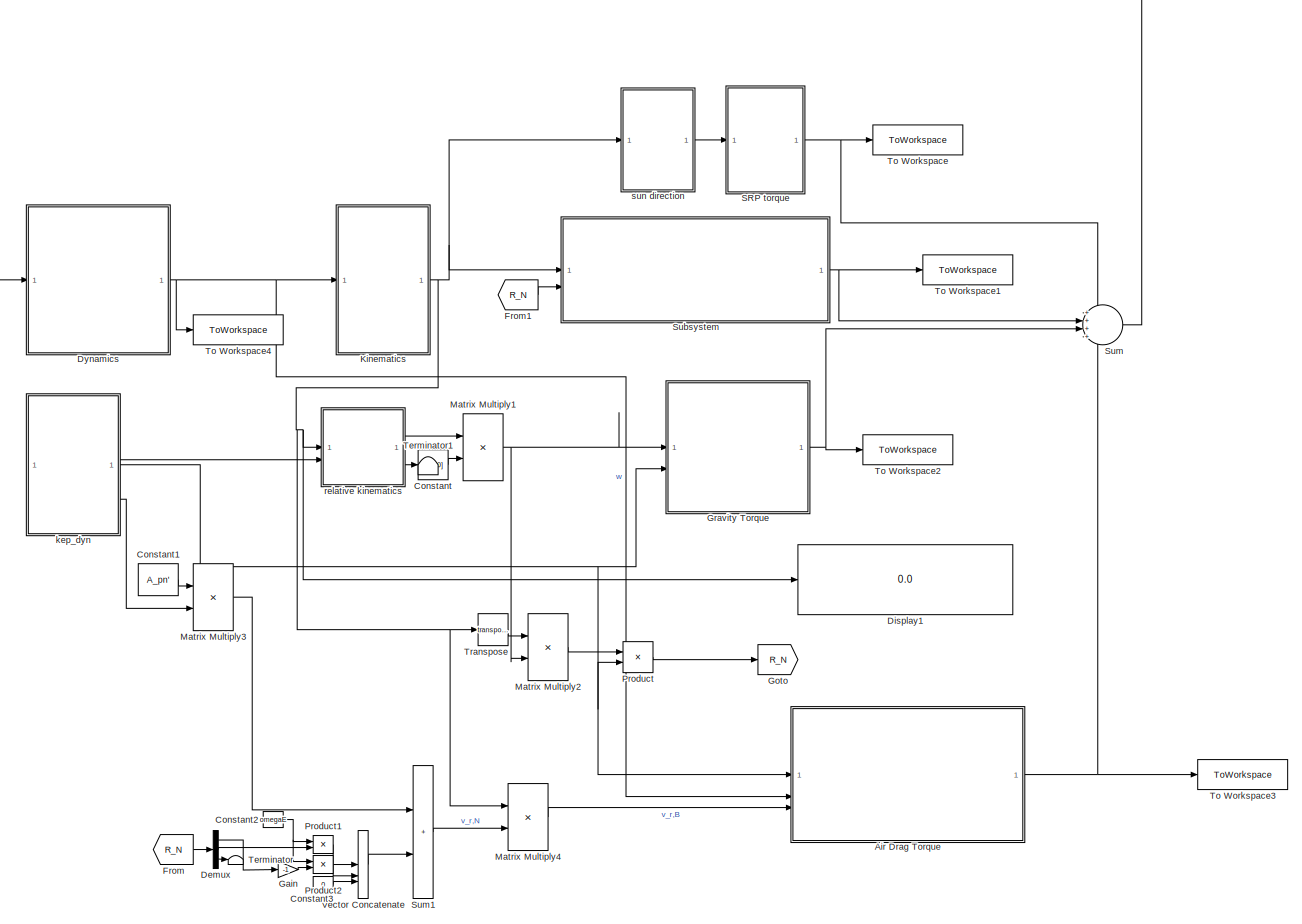
[diagram: root canvas - part 1/1, most of the canvas]
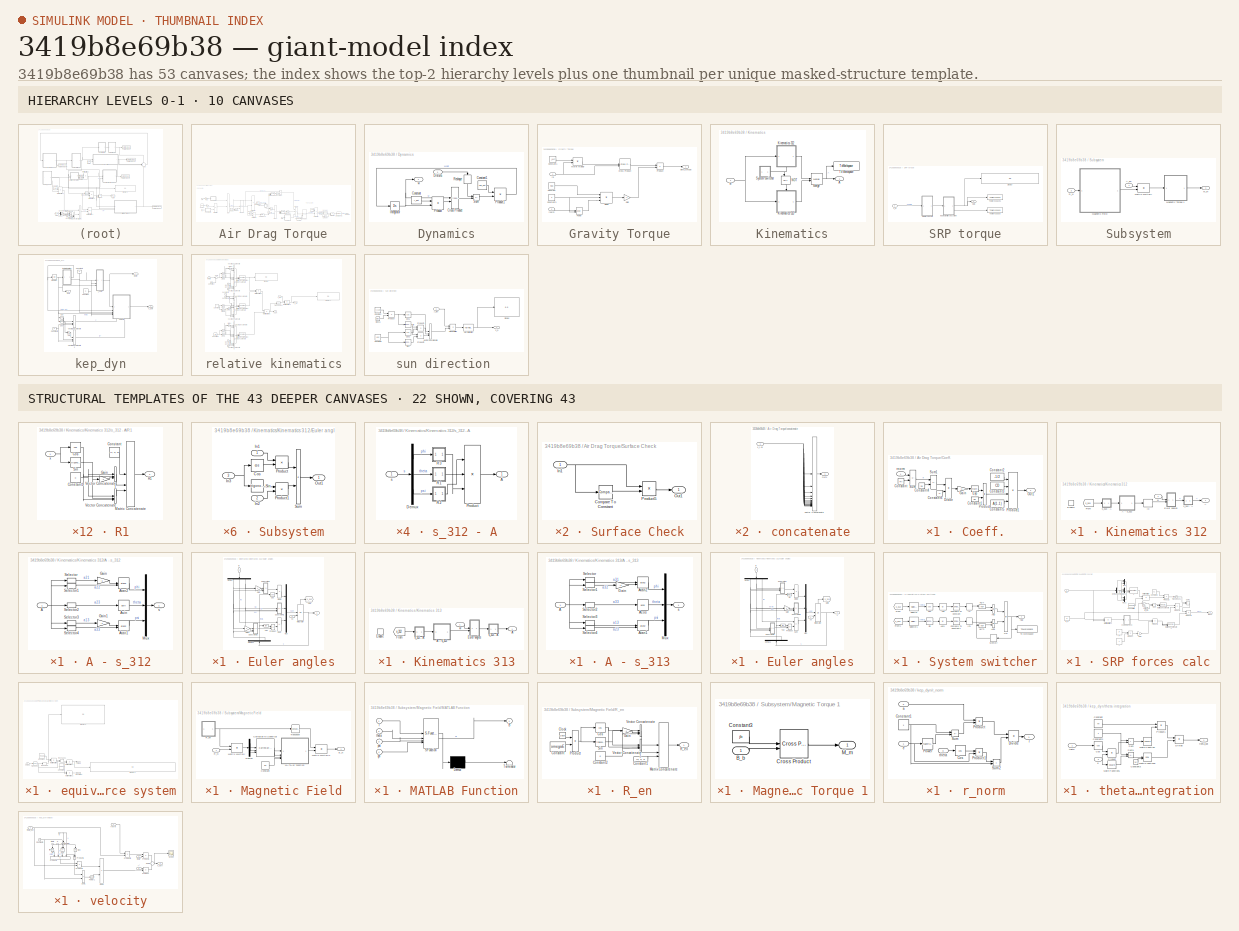
[diagram: thumbnail index - top-2 hierarchy levels (10 canvases) + 22 structural-template representatives of the remaining 43 canvases]
MODEL slx_3419b8e69b38
KIND model
CONFIG AbsTol = auto
CONFIG EnableMultiTasking = off
CONFIG FixedStep = 1
CONFIG MaxStep = auto
CONFIG MinStep = auto
CONFIG RelTol = 1e-3
CONFIG SampleTimeConstraint = Unconstrained
CONFIG SolverName = ode5
CONFIG StartTime = 0.0
CONFIG StopTime = 5643.69
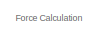
[diagram: Air Drag Torque - part 1/3, top left region]
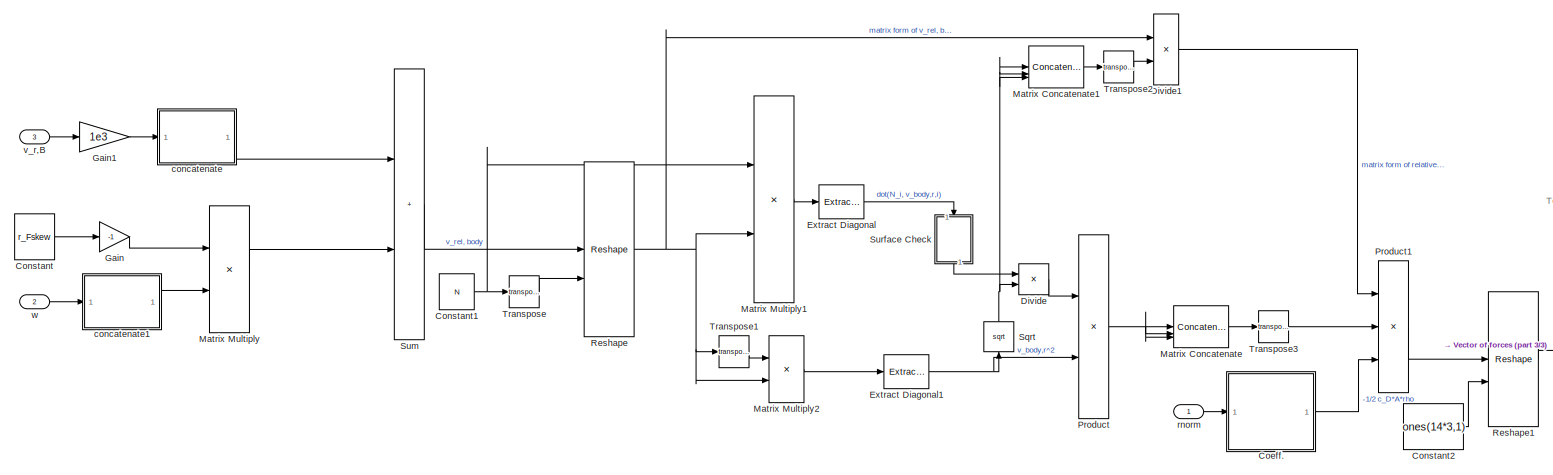
[diagram: Air Drag Torque - part 2/3, center side, full height]
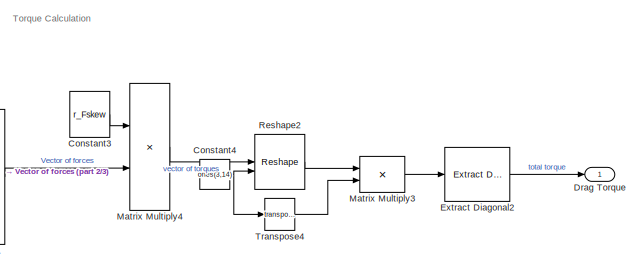
[diagram: Air Drag Torque - part 3/3, bottom right region]
BLOCK [SubSystem] Air Drag Torque
  NameLocation = top
BLOCK [SubSystem] Air Drag Torque/Coeff.
BLOCK [Constant] Air Drag Torque/Coeff./Constant
  Value = Rt
BLOCK [Constant] Air Drag Torque/Coeff./Constant1
  Value = d0
BLOCK [Constant] Air Drag Torque/Coeff./Constant2
  Value = -1/2
BLOCK [Constant] Air Drag Torque/Coeff./Constant3
  Value = CD
BLOCK [Constant] Air Drag Torque/Coeff./Constant4
  Value = h0
BLOCK [Constant] Air Drag Torque/Coeff./Constant5
  Value = A(1,1)
BLOCK [Constant] Air Drag Torque/Coeff./Constant6
  Value = H
BLOCK [Product] Air Drag Torque/Coeff./Divide
  Inputs = */
BLOCK [Math] Air Drag Torque/Coeff./Exp
BLOCK [Gain] Air Drag Torque/Coeff./Gain
  Gain = -1
BLOCK [Outport] Air Drag Torque/Coeff./Out1
BLOCK [Product] Air Drag Torque/Coeff./Product
BLOCK [Product] Air Drag Torque/Coeff./Product1
  Inputs = 4
BLOCK [Sum] Air Drag Torque/Coeff./Sum
  IconShape = rectangular
  Inputs = +-
BLOCK [Sum] Air Drag Torque/Coeff./Sum1
  IconShape = rectangular
  Inputs = +-
BLOCK [Inport] Air Drag Torque/Coeff./rnorm
  NameLocation = top
BLOCK [Constant] Air Drag Torque/Constant
  Value = r_Fskew
BLOCK [Constant] Air Drag Torque/Constant1
  Value = N
BLOCK [Constant] Air Drag Torque/Constant2
  Value = ones(14*3,1)
BLOCK [Constant] Air Drag Torque/Constant3
  Value = r_Fskew
BLOCK [Constant] Air Drag Torque/Constant4
  Value = ones(3,14)
BLOCK [Product] Air Drag Torque/Divide
  Inputs = */
BLOCK [Product] Air Drag Torque/Divide1
  Inputs = */
BLOCK [Outport] Air Drag Torque/Drag Torque
BLOCK [Reference] Air Drag Torque/Extract Diagonal  REF=matrix_library/Extract Diagonal
  LibrarySourceBlock = simulink/Matrix\nOperations/Extract Diagonal
  SourceBlock = matrix_library/Extract Diagonal
  SourceType = Extract Diagonal
BLOCK [Reference] Air Drag Torque/Extract Diagonal1  REF=matrix_library/Extract Diagonal
  LibrarySourceBlock = simulink/Matrix\nOperations/Extract Diagonal
  SourceBlock = matrix_library/Extract Diagonal
  SourceType = Extract Diagonal
BLOCK [Reference] Air Drag Torque/Extract Diagonal2  REF=matrix_library/Extract Diagonal
  LibrarySourceBlock = simulink/Matrix\nOperations/Extract Diagonal
  SourceBlock = matrix_library/Extract Diagonal
  SourceType = Extract Diagonal
BLOCK [Gain] Air Drag Torque/Gain
  Gain = -1
BLOCK [Gain] Air Drag Torque/Gain1
  Gain = 1e3
BLOCK [Concatenate] Air Drag Torque/Matrix Concatenate
  ConcatenateDimension = 2
  Mode = Multidimensional array
  NumInputs = 3
BLOCK [Concatenate] Air Drag Torque/Matrix Concatenate1
  ConcatenateDimension = 2
  Mode = Multidimensional array
  NumInputs = 3
BLOCK [Product] Air Drag Torque/Matrix Multiply
  Multiplication = Matrix(*)
BLOCK [Product] Air Drag Torque/Matrix Multiply1
  Multiplication = Matrix(*)
BLOCK [Product] Air Drag Torque/Matrix Multiply2
  Multiplication = Matrix(*)
BLOCK [Product] Air Drag Torque/Matrix Multiply3
  Multiplication = Matrix(*)
BLOCK [Product] Air Drag Torque/Matrix Multiply4
  Multiplication = Matrix(*)
BLOCK [Product] Air Drag Torque/Product
BLOCK [Product] Air Drag Torque/Product1
  Inputs = 3
BLOCK [Reshape] Air Drag Torque/Reshape
  OutputDimensionality = Derive from reference input port
BLOCK [Reshape] Air Drag Torque/Reshape1
  OutputDimensionality = Derive from reference input port
BLOCK [Reshape] Air Drag Torque/Reshape2
  OutputDimensionality = Derive from reference input port
BLOCK [Sqrt] Air Drag Torque/Sqrt
  NameLocation = right
BLOCK [Sum] Air Drag Torque/Sum
  IconShape = rectangular
BLOCK [SubSystem] Air Drag Torque/Surface Check
  NameLocation = left
BLOCK [Reference] Air Drag Torque/Surface Check/Compare To Constant  REF=simulink/Logic and Bit
Operations/Compare
To Constant
  SourceBlock = simulink/Logic and Bit\nOperations/Compare\nTo Constant
  SourceType = Compare To Constant
BLOCK [Inport] Air Drag Torque/Surface Check/In1
BLOCK [Outport] Air Drag Torque/Surface Check/Out1
BLOCK [Product] Air Drag Torque/Surface Check/Product5
BLOCK [Math] Air Drag Torque/Transpose
  Operator = transpose
BLOCK [Math] Air Drag Torque/Transpose1
  Operator = transpose
BLOCK [Math] Air Drag Torque/Transpose2
  Operator = transpose
BLOCK [Math] Air Drag Torque/Transpose3
  Operator = transpose
BLOCK [Math] Air Drag Torque/Transpose4
  Operator = transpose
BLOCK [SubSystem] Air Drag Torque/concatenate
BLOCK [Outport] Air Drag Torque/concatenate/Out1
BLOCK [Concatenate] Air Drag Torque/concatenate/Vector Concatenate
  NumInputs = 14
BLOCK [Inport] Air Drag Torque/concatenate/v_r,B
BLOCK [SubSystem] Air Drag Torque/concatenate1
BLOCK [Inport] Air Drag Torque/concatenate1/In1
BLOCK [Outport] Air Drag Torque/concatenate1/Out1
BLOCK [Concatenate] Air Drag Torque/concatenate1/Vector Concatenate
  NumInputs = 14
BLOCK [Inport] Air Drag Torque/rnorm
BLOCK [Inport] Air Drag Torque/v_r,B
  Port = 3
BLOCK [Inport] Air Drag Torque/w
  Port = 2
BLOCK [Constant] Constant
  Value = [1;0;0]
BLOCK [Constant] Constant1
  Value = A_pn'
BLOCK [Constant] Constant2
  Value = omegaE
BLOCK [Constant] Constant3
  Value = 0
BLOCK [Demux] Demux
  Outputs = 3
BLOCK [Display] Display1
  Decimation = 1
BLOCK [SubSystem] Dynamics
BLOCK [Constant] Dynamics/Constant
  Value = I_ext
BLOCK [Constant] Dynamics/Constant1
  Value = Iinv_ext
BLOCK [Reference] Dynamics/Cross Product  REF=matrix_library/Cross Product
  LibrarySourceBlock = simulink/Matrix\nOperations/Cross Product
  SourceBlock = matrix_library/Cross Product
  SourceType = CrossProduct
BLOCK [Inport] Dynamics/Disturb.
BLOCK [Integrator] Dynamics/Integrator
  InitialCondition = omega0
BLOCK [Product] Dynamics/Product
  Multiplication = Matrix(*)
BLOCK [Product] Dynamics/Product1
  Multiplication = Matrix(*)
BLOCK [Reshape] Dynamics/Reshape
  NameLocation = left
  OutputDimensionality = Column vector (2-D)
BLOCK [Sum] Dynamics/Sum
  IconShape = rectangular
  Inputs = +-
BLOCK [Outport] Dynamics/w
BLOCK [From] From
  GotoTag = R_N
  TagVisibility = global
BLOCK [From] From1
  GotoTag = R_N
  TagVisibility = global
BLOCK [Gain] Gain
  Gain = -1
BLOCK [Goto] Goto
  GotoTag = R_N
  TagVisibility = global
BLOCK [SubSystem] Gravity Torque
BLOCK [Constant] Gravity Torque/Constant
  Value = muE
BLOCK [Constant] Gravity Torque/Constant1
  Value = I_ext
BLOCK [Constant] Gravity Torque/Constant3
  Value = 3
BLOCK [Reference] Gravity Torque/Cross Product  REF=matrix_library/Cross Product
  LibrarySourceBlock = simulink/Matrix\nOperations/Cross Product
  SourceBlock = matrix_library/Cross Product
  SourceType = CrossProduct
BLOCK [Product] Gravity Torque/Divide
  Inputs = **/
BLOCK [Outport] Gravity Torque/GRAV_torque
BLOCK [Gain] Gravity Torque/Gain
  Gain = -1
BLOCK [Product] Gravity Torque/Matrix Multiply
  Multiplication = Matrix(*)
BLOCK [Math] Gravity Torque/Power
  Operator = pow
BLOCK [Product] Gravity Torque/Product
BLOCK [Inport] Gravity Torque/rb
BLOCK [Inport] Gravity Torque/rnorm
  Port = 2
BLOCK [SubSystem] Kinematics
BLOCK [Outport] Kinematics/A
BLOCK [SubSystem] Kinematics/Kinematics 312
  NameLocation = top
BLOCK [Outport] Kinematics/Kinematics 312/A
BLOCK [SubSystem] Kinematics/Kinematics 312/A - s_312
BLOCK [Inport] Kinematics/Kinematics 312/A - s_312/A
BLOCK [Trigonometry] Kinematics/Kinematics 312/A - s_312/Asin
  Operator = asin
BLOCK [Trigonometry] Kinematics/Kinematics 312/A - s_312/Atan1
  Operator = atan2
BLOCK [Trigonometry] Kinematics/Kinematics 312/A - s_312/Atan2
  Operator = atan2
BLOCK [Gain] Kinematics/Kinematics 312/A - s_312/Gain
  Gain = -1
BLOCK [Gain] Kinematics/Kinematics 312/A - s_312/Gain1
  Gain = -1
BLOCK [Mux] Kinematics/Kinematics 312/A - s_312/Mux
  DisplayOption = bar
  Inputs = 3
BLOCK [Selector] Kinematics/Kinematics 312/A - s_312/Selector
  IndexOptions = Index vector (dialog),Index vector (dialog)
  Indices = 2,1
  InputPortWidth = 3
  NumberOfDimensions = 2
  OutputSizes = 1,1
BLOCK [Selector] Kinematics/Kinematics 312/A - s_312/Selector1
  IndexOptions = Index vector (dialog),Index vector (dialog)
  Indices = 2,2
  InputPortWidth = 3
  NumberOfDimensions = 2
  OutputSizes = 1,1
BLOCK [Selector] Kinematics/Kinematics 312/A - s_312/Selector2
  IndexOptions = Index vector (dialog),Index vector (dialog)
  Indices = 2,3
  InputPortWidth = 3
  NumberOfDimensions = 2
  OutputSizes = 1,1
BLOCK [Selector] Kinematics/Kinematics 312/A - s_312/Selector3
  IndexOptions = Index vector (dialog),Index vector (dialog)
  Indices = 1,3
  InputPortWidth = 3
  NumberOfDimensions = 2
  OutputSizes = 1,1
BLOCK [Selector] Kinematics/Kinematics 312/A - s_312/Selector4
  IndexOptions = Index vector (dialog),Index vector (dialog)
  Indices = 3,3
  InputPortWidth = 3
  NumberOfDimensions = 2
  OutputSizes = 1,1
BLOCK [Outport] Kinematics/Kinematics 312/A - s_312/s
BLOCK [EnablePort] Kinematics/Kinematics 312/Enable
  StatesWhenEnabling = reset
BLOCK [SubSystem] Kinematics/Kinematics 312/Euler angles
BLOCK [Trigonometry] Kinematics/Kinematics 312/Euler angles/Cos
  Operator = cos
BLOCK [Demux] Kinematics/Kinematics 312/Euler angles/Demux
  NameLocation = left
  Outputs = 3
BLOCK [Demux] Kinematics/Kinematics 312/Euler angles/Demux1
  NameLocation = right
  Outputs = 3
BLOCK [Product] Kinematics/Kinematics 312/Euler angles/Divide
  Inputs = */
BLOCK [Gain] Kinematics/Kinematics 312/Euler angles/Gain
  Gain = -1
BLOCK [Gain] Kinematics/Kinematics 312/Euler angles/Gain1
  Gain = -1
BLOCK [Goto] Kinematics/Kinematics 312/Euler angles/Goto
  GotoTag = s_312
  TagVisibility = global
BLOCK [Integrator] Kinematics/Kinematics 312/Euler angles/Integrator
  InitialCondition = s0
  InitialConditionSource = external
  ShowStatePort = on
  WrapState = on
  WrappedStateLowerValue = 0
  WrappedStateUpperValue = 2*pi
BLOCK [Mux] Kinematics/Kinematics 312/Euler angles/Mux
  DisplayOption = bar
  Inputs = 3
BLOCK [Product] Kinematics/Kinematics 312/Euler angles/Product
BLOCK [SubSystem] Kinematics/Kinematics 312/Euler angles/Subsystem
BLOCK [Trigonometry] Kinematics/Kinematics 312/Euler angles/Subsystem/Cos
  Operator = cos
BLOCK [Inport] Kinematics/Kinematics 312/Euler angles/Subsystem/In1
BLOCK [Inport] Kinematics/Kinematics 312/Euler angles/Subsystem/In2
  Port = 2
BLOCK [Inport] Kinematics/Kinematics 312/Euler angles/Subsystem/In3
  Port = 3
BLOCK [Outport] Kinematics/Kinematics 312/Euler angles/Subsystem/Out1
BLOCK [Product] Kinematics/Kinematics 312/Euler angles/Subsystem/Product
BLOCK [Product] Kinematics/Kinematics 312/Euler angles/Subsystem/Product1
BLOCK [Trigonometry] Kinematics/Kinematics 312/Euler angles/Subsystem/Sin
BLOCK [Sum] Kinematics/Kinematics 312/Euler angles/Subsystem/Sum
  IconShape = rectangular
BLOCK [SubSystem] Kinematics/Kinematics 312/Euler angles/Subsystem1
BLOCK [Trigonometry] Kinematics/Kinematics 312/Euler angles/Subsystem1/Cos
  Operator = cos
BLOCK [Inport] Kinematics/Kinematics 312/Euler angles/Subsystem1/In1
BLOCK [Inport] Kinematics/Kinematics 312/Euler angles/Subsystem1/In2
  Port = 2
BLOCK [Inport] Kinematics/Kinematics 312/Euler angles/Subsystem1/In3
  Port = 3
BLOCK [Outport] Kinematics/Kinematics 312/Euler angles/Subsystem1/Out1
BLOCK [Product] Kinematics/Kinematics 312/Euler angles/Subsystem1/Product
BLOCK [Product] Kinematics/Kinematics 312/Euler angles/Subsystem1/Product1
BLOCK [Trigonometry] Kinematics/Kinematics 312/Euler angles/Subsystem1/Sin
BLOCK [Sum] Kinematics/Kinematics 312/Euler angles/Subsystem1/Sum
  IconShape = rectangular
BLOCK [SubSystem] Kinematics/Kinematics 312/Euler angles/Subsystem2
BLOCK [Trigonometry] Kinematics/Kinematics 312/Euler angles/Subsystem2/Cos
  Operator = cos
BLOCK [Inport] Kinematics/Kinematics 312/Euler angles/Subsystem2/In1
BLOCK [Inport] Kinematics/Kinematics 312/Euler angles/Subsystem2/In2
  Port = 2
BLOCK [Inport] Kinematics/Kinematics 312/Euler angles/Subsystem2/In3
  Port = 3
BLOCK [Outport] Kinematics/Kinematics 312/Euler angles/Subsystem2/Out1
BLOCK [Product] Kinematics/Kinematics 312/Euler angles/Subsystem2/Product
BLOCK [Product] Kinematics/Kinematics 312/Euler angles/Subsystem2/Product1
BLOCK [Trigonometry] Kinematics/Kinematics 312/Euler angles/Subsystem2/Sin
BLOCK [Sum] Kinematics/Kinematics 312/Euler angles/Subsystem2/Sum
  IconShape = rectangular
BLOCK [Sum] Kinematics/Kinematics 312/Euler angles/Sum
  IconShape = rectangular
  Inputs = +-
BLOCK [Trigonometry] Kinematics/Kinematics 312/Euler angles/Tan
  Operator = tan
BLOCK [Outport] Kinematics/Kinematics 312/Euler angles/s
BLOCK [Inport] Kinematics/Kinematics 312/Euler angles/s0
  Port = 2
BLOCK [Inport] Kinematics/Kinematics 312/Euler angles/w
  NameLocation = left
BLOCK [From] Kinematics/Kinematics 312/From
  GotoTag = s_313
  TagVisibility = global
BLOCK [InitialCondition] Kinematics/Kinematics 312/IC
  Value = s0
BLOCK [SubSystem] Kinematics/Kinematics 312/s_312 - A
BLOCK [Outport] Kinematics/Kinematics 312/s_312 - A/A
BLOCK [Demux] Kinematics/Kinematics 312/s_312 - A/Demux
  Outputs = 3
BLOCK [Product] Kinematics/Kinematics 312/s_312 - A/Product
  Inputs = 3
  Multiplication = Matrix(*)
BLOCK [SubSystem] Kinematics/Kinematics 312/s_312 - A/R1
BLOCK [Constant] Kinematics/Kinematics 312/s_312 - A/R1/Constant
  Value = [1; 0; 0]
BLOCK [Constant] Kinematics/Kinematics 312/s_312 - A/R1/Constant1
  Value = 0
BLOCK [Trigonometry] Kinematics/Kinematics 312/s_312 - A/R1/Cos
  Operator = cos
BLOCK [Gain] Kinematics/Kinematics 312/s_312 - A/R1/Gain
  Gain = -1
BLOCK [Concatenate] Kinematics/Kinematics 312/s_312 - A/R1/Matrix Concatenate
  ConcatenateDimension = 2
  Mode = Multidimensional array
  NumInputs = 3
BLOCK [Outport] Kinematics/Kinematics 312/s_312 - A/R1/R1
BLOCK [Trigonometry] Kinematics/Kinematics 312/s_312 - A/R1/Sin
BLOCK [Concatenate] Kinematics/Kinematics 312/s_312 - A/R1/Vector Concatenate
  NumInputs = 3
BLOCK [Concatenate] Kinematics/Kinematics 312/s_312 - A/R1/Vector Concatenate1
  NumInputs = 3
BLOCK [Inport] Kinematics/Kinematics 312/s_312 - A/R1/x
BLOCK [SubSystem] Kinematics/Kinematics 312/s_312 - A/R2
BLOCK [Constant] Kinematics/Kinematics 312/s_312 - A/R2/Constant
  Value = [0; 1; 0]
BLOCK [Constant] Kinematics/Kinematics 312/s_312 - A/R2/Constant1
  Value = 0
BLOCK [Trigonometry] Kinematics/Kinematics 312/s_312 - A/R2/Cos
  Operator = cos
BLOCK [Gain] Kinematics/Kinematics 312/s_312 - A/R2/Gain
  Gain = -1
BLOCK [Concatenate] Kinematics/Kinematics 312/s_312 - A/R2/Matrix Concatenate
  ConcatenateDimension = 2
  Mode = Multidimensional array
  NumInputs = 3
BLOCK [Outport] Kinematics/Kinematics 312/s_312 - A/R2/R2
BLOCK [Trigonometry] Kinematics/Kinematics 312/s_312 - A/R2/Sin
BLOCK [Concatenate] Kinematics/Kinematics 312/s_312 - A/R2/Vector Concatenate
  NumInputs = 3
BLOCK [Concatenate] Kinematics/Kinematics 312/s_312 - A/R2/Vector Concatenate1
  NumInputs = 3
BLOCK [Inport] Kinematics/Kinematics 312/s_312 - A/R2/x
BLOCK [SubSystem] Kinematics/Kinematics 312/s_312 - A/R3
BLOCK [Constant] Kinematics/Kinematics 312/s_312 - A/R3/Constant
  Value = [0; 0; 1]
BLOCK [Constant] Kinematics/Kinematics 312/s_312 - A/R3/Constant1
  Value = 0
BLOCK [Trigonometry] Kinematics/Kinematics 312/s_312 - A/R3/Cos
  Operator = cos
BLOCK [Gain] Kinematics/Kinematics 312/s_312 - A/R3/Gain
  Gain = -1
BLOCK [Concatenate] Kinematics/Kinematics 312/s_312 - A/R3/Matrix Concatenate
  ConcatenateDimension = 2
  Mode = Multidimensional array
  NumInputs = 3
BLOCK [Outport] Kinematics/Kinematics 312/s_312 - A/R3/R3
BLOCK [Trigonometry] Kinematics/Kinematics 312/s_312 - A/R3/Sin
BLOCK [Concatenate] Kinematics/Kinematics 312/s_312 - A/R3/Vector Concatenate
  NumInputs = 3
BLOCK [Concatenate] Kinematics/Kinematics 312/s_312 - A/R3/Vector Concatenate1
  NumInputs = 3
BLOCK [Inport] Kinematics/Kinematics 312/s_312 - A/R3/x
BLOCK [Inport] Kinematics/Kinematics 312/s_312 - A/s
BLOCK [SubSystem] Kinematics/Kinematics 312/s_313 - A
BLOCK [Outport] Kinematics/Kinematics 312/s_313 - A/A
BLOCK [Demux] Kinematics/Kinematics 312/s_313 - A/Demux
  Outputs = 3
BLOCK [Product] Kinematics/Kinematics 312/s_313 - A/Product
  Inputs = 3
  Multiplication = Matrix(*)
BLOCK [SubSystem] Kinematics/Kinematics 312/s_313 - A/R1
BLOCK [Constant] Kinematics/Kinematics 312/s_313 - A/R1/Constant
  Value = [1; 0; 0]
BLOCK [Constant] Kinematics/Kinematics 312/s_313 - A/R1/Constant1
  Value = 0
BLOCK [Trigonometry] Kinematics/Kinematics 312/s_313 - A/R1/Cos
  Operator = cos
BLOCK [Gain] Kinematics/Kinematics 312/s_313 - A/R1/Gain
  Gain = -1
BLOCK [Concatenate] Kinematics/Kinematics 312/s_313 - A/R1/Matrix Concatenate
  ConcatenateDimension = 2
  Mode = Multidimensional array
  NumInputs = 3
BLOCK [Outport] Kinematics/Kinematics 312/s_313 - A/R1/R1
BLOCK [Trigonometry] Kinematics/Kinematics 312/s_313 - A/R1/Sin
BLOCK [Concatenate] Kinematics/Kinematics 312/s_313 - A/R1/Vector Concatenate
  NumInputs = 3
BLOCK [Concatenate] Kinematics/Kinematics 312/s_313 - A/R1/Vector Concatenate1
  NumInputs = 3
BLOCK [Inport] Kinematics/Kinematics 312/s_313 - A/R1/x
BLOCK [SubSystem] Kinematics/Kinematics 312/s_313 - A/R3_1
BLOCK [Constant] Kinematics/Kinematics 312/s_313 - A/R3_1/Constant
  Value = [0; 0; 1]
BLOCK [Constant] Kinematics/Kinematics 312/s_313 - A/R3_1/Constant1
  Value = 0
BLOCK [Trigonometry] Kinematics/Kinematics 312/s_313 - A/R3_1/Cos
  Operator = cos
BLOCK [Gain] Kinematics/Kinematics 312/s_313 - A/R3_1/Gain
  Gain = -1
BLOCK [Concatenate] Kinematics/Kinematics 312/s_313 - A/R3_1/Matrix Concatenate
  ConcatenateDimension = 2
  Mode = Multidimensional array
  NumInputs = 3
BLOCK [Outport] Kinematics/Kinematics 312/s_313 - A/R3_1/R3
BLOCK [Trigonometry] Kinematics/Kinematics 312/s_313 - A/R3_1/Sin
BLOCK [Concatenate] Kinematics/Kinematics 312/s_313 - A/R3_1/Vector Concatenate
  NumInputs = 3
BLOCK [Concatenate] Kinematics/Kinematics 312/s_313 - A/R3_1/Vector Concatenate1
  NumInputs = 3
BLOCK [Inport] Kinematics/Kinematics 312/s_313 - A/R3_1/x
BLOCK [SubSystem] Kinematics/Kinematics 312/s_313 - A/R3_2
BLOCK [Constant] Kinematics/Kinematics 312/s_313 - A/R3_2/Constant
  Value = [0; 0; 1]
BLOCK [Constant] Kinematics/Kinematics 312/s_313 - A/R3_2/Constant1
  Value = 0
BLOCK [Trigonometry] Kinematics/Kinematics 312/s_313 - A/R3_2/Cos
  Operator = cos
BLOCK [Gain] Kinematics/Kinematics 312/s_313 - A/R3_2/Gain
  Gain = -1
BLOCK [Concatenate] Kinematics/Kinematics 312/s_313 - A/R3_2/Matrix Concatenate
  ConcatenateDimension = 2
  Mode = Multidimensional array
  NumInputs = 3
BLOCK [Outport] Kinematics/Kinematics 312/s_313 - A/R3_2/R3
BLOCK [Trigonometry] Kinematics/Kinematics 312/s_313 - A/R3_2/Sin
BLOCK [Concatenate] Kinematics/Kinematics 312/s_313 - A/R3_2/Vector Concatenate
  NumInputs = 3
BLOCK [Concatenate] Kinematics/Kinematics 312/s_313 - A/R3_2/Vector Concatenate1
  NumInputs = 3
BLOCK [Inport] Kinematics/Kinematics 312/s_313 - A/R3_2/x
BLOCK [Inport] Kinematics/Kinematics 312/s_313 - A/s
BLOCK [Inport] Kinematics/Kinematics 312/w
BLOCK [SubSystem] Kinematics/Kinematics 313
BLOCK [Outport] Kinematics/Kinematics 313/A
BLOCK [SubSystem] Kinematics/Kinematics 313/A - s_313
BLOCK [Inport] Kinematics/Kinematics 313/A - s_313/A
BLOCK [Trigonometry] Kinematics/Kinematics 313/A - s_313/Acos
  Operator = acos
BLOCK [Trigonometry] Kinematics/Kinematics 313/A - s_313/Atan1
  Operator = atan2
BLOCK [Trigonometry] Kinematics/Kinematics 313/A - s_313/Atan2
  Operator = atan2
BLOCK [Gain] Kinematics/Kinematics 313/A - s_313/Gain
  Gain = -1
BLOCK [Mux] Kinematics/Kinematics 313/A - s_313/Mux
  DisplayOption = bar
  Inputs = 3
BLOCK [Selector] Kinematics/Kinematics 313/A - s_313/Selector
  IndexOptions = Index vector (dialog),Index vector (dialog)
  Indices = 3,1
  InputPortWidth = 3
  NumberOfDimensions = 2
  OutputSizes = 1,1
BLOCK [Selector] Kinematics/Kinematics 313/A - s_313/Selector1
  IndexOptions = Index vector (dialog),Index vector (dialog)
  Indices = 3,2
  InputPortWidth = 3
  NumberOfDimensions = 2
  OutputSizes = 1,1
BLOCK [Selector] Kinematics/Kinematics 313/A - s_313/Selector2
  IndexOptions = Index vector (dialog),Index vector (dialog)
  Indices = 3,3
  InputPortWidth = 3
  NumberOfDimensions = 2
  OutputSizes = 1,1
BLOCK [Selector] Kinematics/Kinematics 313/A - s_313/Selector3
  IndexOptions = Index vector (dialog),Index vector (dialog)
  Indices = 1,3
  InputPortWidth = 3
  NumberOfDimensions = 2
  OutputSizes = 1,1
BLOCK [Selector] Kinematics/Kinematics 313/A - s_313/Selector4
  IndexOptions = Index vector (dialog),Index vector (dialog)
  Indices = 2,3
  InputPortWidth = 3
  NumberOfDimensions = 2
  OutputSizes = 1,1
BLOCK [Outport] Kinematics/Kinematics 313/A - s_313/s
BLOCK [EnablePort] Kinematics/Kinematics 313/Enable
  StatesWhenEnabling = reset
BLOCK [SubSystem] Kinematics/Kinematics 313/Euler angles
BLOCK [Demux] Kinematics/Kinematics 313/Euler angles/Demux
  NameLocation = left
  Outputs = 3
BLOCK [Demux] Kinematics/Kinematics 313/Euler angles/Demux1
  NameLocation = right
  Outputs = 3
BLOCK [Product] Kinematics/Kinematics 313/Euler angles/Divide
  Inputs = */
BLOCK [Gain] Kinematics/Kinematics 313/Euler angles/Gain
  Gain = -1
BLOCK [Goto] Kinematics/Kinematics 313/Euler angles/Goto
  GotoTag = s_313
  TagVisibility = global
BLOCK [Integrator] Kinematics/Kinematics 313/Euler angles/Integrator
  InitialCondition = s0
  InitialConditionSource = external
  ShowStatePort = on
  WrapState = on
  WrappedStateLowerValue = 0
  WrappedStateUpperValue = 2*pi
BLOCK [Mux] Kinematics/Kinematics 313/Euler angles/Mux
  DisplayOption = bar
  Inputs = 3
BLOCK [Product] Kinematics/Kinematics 313/Euler angles/Product
  Inputs = /*
BLOCK [Trigonometry] Kinematics/Kinematics 313/Euler angles/Sin
BLOCK [SubSystem] Kinematics/Kinematics 313/Euler angles/Subsystem
BLOCK [Trigonometry] Kinematics/Kinematics 313/Euler angles/Subsystem/Cos
  Operator = cos
BLOCK [Inport] Kinematics/Kinematics 313/Euler angles/Subsystem/In1
BLOCK [Inport] Kinematics/Kinematics 313/Euler angles/Subsystem/In2
  Port = 2
BLOCK [Inport] Kinematics/Kinematics 313/Euler angles/Subsystem/In3
  Port = 3
BLOCK [Outport] Kinematics/Kinematics 313/Euler angles/Subsystem/Out1
BLOCK [Product] Kinematics/Kinematics 313/Euler angles/Subsystem/Product
BLOCK [Product] Kinematics/Kinematics 313/Euler angles/Subsystem/Product1
BLOCK [Trigonometry] Kinematics/Kinematics 313/Euler angles/Subsystem/Sin
BLOCK [Sum] Kinematics/Kinematics 313/Euler angles/Subsystem/Sum
  IconShape = rectangular
BLOCK [SubSystem] Kinematics/Kinematics 313/Euler angles/Subsystem1
BLOCK [Trigonometry] Kinematics/Kinematics 313/Euler angles/Subsystem1/Cos
  Operator = cos
BLOCK [Inport] Kinematics/Kinematics 313/Euler angles/Subsystem1/In1
BLOCK [Inport] Kinematics/Kinematics 313/Euler angles/Subsystem1/In2
  Port = 2
BLOCK [Inport] Kinematics/Kinematics 313/Euler angles/Subsystem1/In3
  Port = 3
BLOCK [Outport] Kinematics/Kinematics 313/Euler angles/Subsystem1/Out1
BLOCK [Product] Kinematics/Kinematics 313/Euler angles/Subsystem1/Product
BLOCK [Product] Kinematics/Kinematics 313/Euler angles/Subsystem1/Product1
BLOCK [Trigonometry] Kinematics/Kinematics 313/Euler angles/Subsystem1/Sin
BLOCK [Sum] Kinematics/Kinematics 313/Euler angles/Subsystem1/Sum
  IconShape = rectangular
BLOCK [SubSystem] Kinematics/Kinematics 313/Euler angles/Subsystem2
BLOCK [Trigonometry] Kinematics/Kinematics 313/Euler angles/Subsystem2/Cos
  Operator = cos
BLOCK [Inport] Kinematics/Kinematics 313/Euler angles/Subsystem2/In1
BLOCK [Inport] Kinematics/Kinematics 313/Euler angles/Subsystem2/In2
  Port = 2
BLOCK [Inport] Kinematics/Kinematics 313/Euler angles/Subsystem2/In3
  Port = 3
BLOCK [Outport] Kinematics/Kinematics 313/Euler angles/Subsystem2/Out1
BLOCK [Product] Kinematics/Kinematics 313/Euler angles/Subsystem2/Product
BLOCK [Product] Kinematics/Kinematics 313/Euler angles/Subsystem2/Product1
BLOCK [Trigonometry] Kinematics/Kinematics 313/Euler angles/Subsystem2/Sin
BLOCK [Sum] Kinematics/Kinematics 313/Euler angles/Subsystem2/Sum
  IconShape = rectangular
BLOCK [Sum] Kinematics/Kinematics 313/Euler angles/Sum
  IconShape = rectangular
  Inputs = +-
BLOCK [Trigonometry] Kinematics/Kinematics 313/Euler angles/Tan
  Operator = tan
BLOCK [Outport] Kinematics/Kinematics 313/Euler angles/s
BLOCK [Inport] Kinematics/Kinematics 313/Euler angles/s0
  Port = 2
BLOCK [Inport] Kinematics/Kinematics 313/Euler angles/w
  NameLocation = left
BLOCK [From] Kinematics/Kinematics 313/From
  GotoTag = s_312
  TagVisibility = global
BLOCK [SubSystem] Kinematics/Kinematics 313/s_312 - A
BLOCK [Outport] Kinematics/Kinematics 313/s_312 - A/A
BLOCK [Demux] Kinematics/Kinematics 313/s_312 - A/Demux
  NameLocation = top
  Outputs = 3
BLOCK [Product] Kinematics/Kinematics 313/s_312 - A/Product
  Inputs = 3
  Multiplication = Matrix(*)
BLOCK [SubSystem] Kinematics/Kinematics 313/s_312 - A/R1
BLOCK [Constant] Kinematics/Kinematics 313/s_312 - A/R1/Constant
  Value = [1; 0; 0]
BLOCK [Constant] Kinematics/Kinematics 313/s_312 - A/R1/Constant1
  Value = 0
BLOCK [Trigonometry] Kinematics/Kinematics 313/s_312 - A/R1/Cos
  Operator = cos
BLOCK [Gain] Kinematics/Kinematics 313/s_312 - A/R1/Gain
  Gain = -1
BLOCK [Concatenate] Kinematics/Kinematics 313/s_312 - A/R1/Matrix Concatenate
  ConcatenateDimension = 2
  Mode = Multidimensional array
  NumInputs = 3
BLOCK [Outport] Kinematics/Kinematics 313/s_312 - A/R1/R1
BLOCK [Trigonometry] Kinematics/Kinematics 313/s_312 - A/R1/Sin
BLOCK [Concatenate] Kinematics/Kinematics 313/s_312 - A/R1/Vector Concatenate
  NumInputs = 3
BLOCK [Concatenate] Kinematics/Kinematics 313/s_312 - A/R1/Vector Concatenate1
  NumInputs = 3
BLOCK [Inport] Kinematics/Kinematics 313/s_312 - A/R1/x
BLOCK [SubSystem] Kinematics/Kinematics 313/s_312 - A/R2
BLOCK [Constant] Kinematics/Kinematics 313/s_312 - A/R2/Constant
  Value = [0; 1; 0]
BLOCK [Constant] Kinematics/Kinematics 313/s_312 - A/R2/Constant1
  Value = 0
BLOCK [Trigonometry] Kinematics/Kinematics 313/s_312 - A/R2/Cos
  Operator = cos
BLOCK [Gain] Kinematics/Kinematics 313/s_312 - A/R2/Gain
  Gain = -1
BLOCK [Concatenate] Kinematics/Kinematics 313/s_312 - A/R2/Matrix Concatenate
  ConcatenateDimension = 2
  Mode = Multidimensional array
  NumInputs = 3
BLOCK [Outport] Kinematics/Kinematics 313/s_312 - A/R2/R2
BLOCK [Trigonometry] Kinematics/Kinematics 313/s_312 - A/R2/Sin
BLOCK [Concatenate] Kinematics/Kinematics 313/s_312 - A/R2/Vector Concatenate
  NumInputs = 3
BLOCK [Concatenate] Kinematics/Kinematics 313/s_312 - A/R2/Vector Concatenate1
  NumInputs = 3
BLOCK [Inport] Kinematics/Kinematics 313/s_312 - A/R2/x
BLOCK [SubSystem] Kinematics/Kinematics 313/s_312 - A/R3
BLOCK [Constant] Kinematics/Kinematics 313/s_312 - A/R3/Constant
  Value = [0; 0; 1]
BLOCK [Constant] Kinematics/Kinematics 313/s_312 - A/R3/Constant1
  Value = 0
BLOCK [Trigonometry] Kinematics/Kinematics 313/s_312 - A/R3/Cos
  Operator = cos
BLOCK [Gain] Kinematics/Kinematics 313/s_312 - A/R3/Gain
  Gain = -1
BLOCK [Concatenate] Kinematics/Kinematics 313/s_312 - A/R3/Matrix Concatenate
  ConcatenateDimension = 2
  Mode = Multidimensional array
  NumInputs = 3
BLOCK [Outport] Kinematics/Kinematics 313/s_312 - A/R3/R3
BLOCK [Trigonometry] Kinematics/Kinematics 313/s_312 - A/R3/Sin
BLOCK [Concatenate] Kinematics/Kinematics 313/s_312 - A/R3/Vector Concatenate
  NumInputs = 3
BLOCK [Concatenate] Kinematics/Kinematics 313/s_312 - A/R3/Vector Concatenate1
  NumInputs = 3
BLOCK [Inport] Kinematics/Kinematics 313/s_312 - A/R3/x
BLOCK [Inport] Kinematics/Kinematics 313/s_312 - A/s
BLOCK [SubSystem] Kinematics/Kinematics 313/s_313 - A
BLOCK [Outport] Kinematics/Kinematics 313/s_313 - A/A
BLOCK [Demux] Kinematics/Kinematics 313/s_313 - A/Demux
  Outputs = 3
BLOCK [Product] Kinematics/Kinematics 313/s_313 - A/Product
  Inputs = 3
  Multiplication = Matrix(*)
BLOCK [SubSystem] Kinematics/Kinematics 313/s_313 - A/R1
BLOCK [Constant] Kinematics/Kinematics 313/s_313 - A/R1/Constant
  Value = [1; 0; 0]
BLOCK [Constant] Kinematics/Kinematics 313/s_313 - A/R1/Constant1
  Value = 0
BLOCK [Trigonometry] Kinematics/Kinematics 313/s_313 - A/R1/Cos
  Operator = cos
BLOCK [Gain] Kinematics/Kinematics 313/s_313 - A/R1/Gain
  Gain = -1
BLOCK [Concatenate] Kinematics/Kinematics 313/s_313 - A/R1/Matrix Concatenate
  ConcatenateDimension = 2
  Mode = Multidimensional array
  NumInputs = 3
BLOCK [Outport] Kinematics/Kinematics 313/s_313 - A/R1/R1
BLOCK [Trigonometry] Kinematics/Kinematics 313/s_313 - A/R1/Sin
BLOCK [Concatenate] Kinematics/Kinematics 313/s_313 - A/R1/Vector Concatenate
  NumInputs = 3
BLOCK [Concatenate] Kinematics/Kinematics 313/s_313 - A/R1/Vector Concatenate1
  NumInputs = 3
BLOCK [Inport] Kinematics/Kinematics 313/s_313 - A/R1/x
BLOCK [SubSystem] Kinematics/Kinematics 313/s_313 - A/R3_1
BLOCK [Constant] Kinematics/Kinematics 313/s_313 - A/R3_1/Constant
  Value = [0; 0; 1]
BLOCK [Constant] Kinematics/Kinematics 313/s_313 - A/R3_1/Constant1
  Value = 0
BLOCK [Trigonometry] Kinematics/Kinematics 313/s_313 - A/R3_1/Cos
  Operator = cos
BLOCK [Gain] Kinematics/Kinematics 313/s_313 - A/R3_1/Gain
  Gain = -1
BLOCK [Concatenate] Kinematics/Kinematics 313/s_313 - A/R3_1/Matrix Concatenate
  ConcatenateDimension = 2
  Mode = Multidimensional array
  NumInputs = 3
BLOCK [Outport] Kinematics/Kinematics 313/s_313 - A/R3_1/R3
BLOCK [Trigonometry] Kinematics/Kinematics 313/s_313 - A/R3_1/Sin
BLOCK [Concatenate] Kinematics/Kinematics 313/s_313 - A/R3_1/Vector Concatenate
  NumInputs = 3
BLOCK [Concatenate] Kinematics/Kinematics 313/s_313 - A/R3_1/Vector Concatenate1
  NumInputs = 3
BLOCK [Inport] Kinematics/Kinematics 313/s_313 - A/R3_1/x
BLOCK [SubSystem] Kinematics/Kinematics 313/s_313 - A/R3_2
BLOCK [Constant] Kinematics/Kinematics 313/s_313 - A/R3_2/Constant
  Value = [0; 0; 1]
BLOCK [Constant] Kinematics/Kinematics 313/s_313 - A/R3_2/Constant1
  Value = 0
BLOCK [Trigonometry] Kinematics/Kinematics 313/s_313 - A/R3_2/Cos
  Operator = cos
BLOCK [Gain] Kinematics/Kinematics 313/s_313 - A/R3_2/Gain
  Gain = -1
BLOCK [Concatenate] Kinematics/Kinematics 313/s_313 - A/R3_2/Matrix Concatenate
  ConcatenateDimension = 2
  Mode = Multidimensional array
  NumInputs = 3
BLOCK [Outport] Kinematics/Kinematics 313/s_313 - A/R3_2/R3
BLOCK [Trigonometry] Kinematics/Kinematics 313/s_313 - A/R3_2/Sin
BLOCK [Concatenate] Kinematics/Kinematics 313/s_313 - A/R3_2/Vector Concatenate
  NumInputs = 3
BLOCK [Concatenate] Kinematics/Kinematics 313/s_313 - A/R3_2/Vector Concatenate1
  NumInputs = 3
BLOCK [Inport] Kinematics/Kinematics 313/s_313 - A/R3_2/x
BLOCK [Inport] Kinematics/Kinematics 313/s_313 - A/s
BLOCK [Inport] Kinematics/Kinematics 313/w
BLOCK [Merge] Kinematics/Merge
BLOCK [Logic] Kinematics/NOT
  AllPortsSameDT = off
  IconShape = distinctive
  NameLocation = left
  Operator = NOT
  OutDataTypeStr = boolean
BLOCK [SubSystem] Kinematics/System switcher
BLOCK [Logic] Kinematics/System switcher/AND
  AllPortsSameDT = off
  IconShape = distinctive
  OutDataTypeStr = boolean
BLOCK [Logic] Kinematics/System switcher/AND1
  AllPortsSameDT = off
  IconShape = distinctive
  OutDataTypeStr = boolean
BLOCK [Abs] Kinematics/System switcher/Abs
  SaturateOnIntegerOverflow = off
BLOCK [Abs] Kinematics/System switcher/Abs1
  SaturateOnIntegerOverflow = off
BLOCK [Reference] Kinematics/System switcher/Compare To Constant  REF=simulink/Logic and Bit
Operations/Compare
To Constant
  SourceBlock = simulink/Logic and Bit\nOperations/Compare\nTo Constant
  SourceType = Compare To Constant
BLOCK [Reference] Kinematics/System switcher/Compare To Constant1  REF=simulink/Logic and Bit
Operations/Compare
To Constant
  SourceBlock = simulink/Logic and Bit\nOperations/Compare\nTo Constant
  SourceType = Compare To Constant
BLOCK [Trigonometry] Kinematics/System switcher/Cos
  Operator = cos
BLOCK [From] Kinematics/System switcher/From
  GotoTag = s_312
  TagVisibility = global
BLOCK [From] Kinematics/System switcher/From1
  GotoTag = s_313
  TagVisibility = global
BLOCK [InitialCondition] Kinematics/System switcher/IC
  Value = 0
BLOCK [InitialCondition] Kinematics/System switcher/IC1
  Value = 0
BLOCK [Memory] Kinematics/System switcher/Memory
  InitialCondition = 1
  NameLocation = top
BLOCK [Logic] Kinematics/System switcher/NOT
  AllPortsSameDT = off
  IconShape = distinctive
  Operator = NOT
  OutDataTypeStr = boolean
BLOCK [Logic] Kinematics/System switcher/NOT1
  AllPortsSameDT = off
  IconShape = distinctive
  Operator = NOT
  OutDataTypeStr = boolean
BLOCK [Logic] Kinematics/System switcher/OR
  AllPortsSameDT = off
  IconShape = distinctive
  Operator = OR
  OutDataTypeStr = boolean
BLOCK [Selector] Kinematics/System switcher/Selector
  IndexOptions = Index vector (dialog)
  Indices = 2
  InputPortWidth = 3
  OutputSizes = 1
BLOCK [Selector] Kinematics/System switcher/Selector1
  IndexOptions = Index vector (dialog)
  Indices = 2
  InputPortWidth = 3
  OutputSizes = 1
BLOCK [Trigonometry] Kinematics/System switcher/Sin
BLOCK [ToWorkspace] Kinematics/System switcher/To Workspace
  FixptAsFi = on
  MaxDataPoints = inf
  SampleTime = -1
  SaveFormat = Timeseries
  VariableName = b
BLOCK [Outport] Kinematics/System switcher/flag
BLOCK [ToWorkspace] Kinematics/To Workspace
  FixptAsFi = on
  MaxDataPoints = inf
  SampleTime = -1
  SaveFormat = Timeseries
  VariableName = A
BLOCK [Inport] Kinematics/w
BLOCK [Product] Matrix Multiply1
  Multiplication = Matrix(*)
BLOCK [Product] Matrix Multiply2
  Multiplication = Matrix(*)
BLOCK [Product] Matrix Multiply3
  Multiplication = Matrix(*)
BLOCK [Product] Matrix Multiply4
  Multiplication = Matrix(*)
BLOCK [Product] Product
BLOCK [Product] Product1
BLOCK [Product] Product2
BLOCK [SubSystem] SRP torque
  NameLocation = top
BLOCK [Display] SRP torque/Display
  Decimation = 1
BLOCK [Outport] SRP torque/Out1
BLOCK [SubSystem] SRP torque/SRP forces calc
BLOCK [Constant] SRP torque/SRP forces calc/A
  Value = A
BLOCK [Constant] SRP torque/SRP forces calc/Constant
  Value = 0
BLOCK [Constant] SRP torque/SRP forces calc/Constant1
  Value = c1
BLOCK [Demux] SRP torque/SRP forces calc/Demux
  Outputs = 3
BLOCK [Gain] SRP torque/SRP forces calc/Gain
  Gain = -1
BLOCK [Gain] SRP torque/SRP forces calc/Gain1
  Gain = 2*rho_s
BLOCK [Inport] SRP torque/SRP forces calc/In1
BLOCK [Concatenate] SRP torque/SRP forces calc/Matrix Concatenate
  ConcatenateDimension = 2
  Mode = Multidimensional array
  NumInputs = 3
BLOCK [Concatenate] SRP torque/SRP forces calc/Matrix Concatenate1
  ConcatenateDimension = 2
  Mode = Multidimensional array
  NumInputs = 3
BLOCK [Product] SRP torque/SRP forces calc/Matrix Multiply
  Multiplication = Matrix(*)
BLOCK [Product] SRP torque/SRP forces calc/Matrix Multiply1
  Multiplication = Matrix(*)
BLOCK [Mux] SRP torque/SRP forces calc/Mux
  DisplayOption = bar
  Inputs = 3
BLOCK [Mux] SRP torque/SRP forces calc/Mux1
  DisplayOption = bar
  Inputs = 3
BLOCK [Mux] SRP torque/SRP forces calc/Mux2
  DisplayOption = bar
  Inputs = 3
BLOCK [Constant] SRP torque/SRP forces calc/N_b
  Value = N
BLOCK [Constant] SRP torque/SRP forces calc/N_b1
  Value = (2/3)*rho_d
BLOCK [Constant] SRP torque/SRP forces calc/P
  Value = P
BLOCK [Product] SRP torque/SRP forces calc/Product
BLOCK [Product] SRP torque/SRP forces calc/Product1
BLOCK [Product] SRP torque/SRP forces calc/Product2
BLOCK [Product] SRP torque/SRP forces calc/Product3
BLOCK [Product] SRP torque/SRP forces calc/Product4
BLOCK [Sum] SRP torque/SRP forces calc/Sum
  IconShape = rectangular
BLOCK [Sum] SRP torque/SRP forces calc/Sum1
  IconShape = rectangular
BLOCK [Math] SRP torque/SRP forces calc/Transpose1
  Operator = transpose
BLOCK [Outport] SRP torque/SRP forces calc/forces
BLOCK [Constant] SRP torque/SRP forces calc/ones matrix
  Value = onesM
BLOCK [Concatenate] SRP torque/SRP forces calc/s 
  ConcatenateDimension = 2
  Mode = Multidimensional array
  NumInputs = 3
BLOCK [SubSystem] SRP torque/SRP forces calc/shadow check
BLOCK [Reference] SRP torque/SRP forces calc/shadow check/Compare To Constant  REF=simulink/Logic and Bit
Operations/Compare
To Constant
  SourceBlock = simulink/Logic and Bit\nOperations/Compare\nTo Constant
  SourceType = Compare To Constant
BLOCK [Inport] SRP torque/SRP forces calc/shadow check/In1
BLOCK [Outport] SRP torque/SRP forces calc/shadow check/Out1
BLOCK [Product] SRP torque/SRP forces calc/shadow check/Product5
BLOCK [Inport] SRP torque/S_B
BLOCK [ToWorkspace] SRP torque/To Workspace
  FixptAsFi = on
  MaxDataPoints = inf
  SampleTime = -1
  SaveFormat = Timeseries
  VariableName = SRP_F
BLOCK [ToWorkspace] SRP torque/To Workspace1
  FixptAsFi = on
  MaxDataPoints = inf
  SampleTime = -1
  SaveFormat = Timeseries
  VariableName = SRP_T
BLOCK [SubSystem] SRP torque/equivalent force system
BLOCK [Constant] SRP torque/equivalent force system/Constant
  Value = r_Fskew
BLOCK [Constant] SRP torque/equivalent force system/Constant1
  Value = onesV
BLOCK [Display] SRP torque/equivalent force system/Display1
  Decimation = 1
BLOCK [Display] SRP torque/equivalent force system/Display2
  Decimation = 1
BLOCK [Inport] SRP torque/equivalent force system/Forces
BLOCK [Product] SRP torque/equivalent force system/Matrix Multiply
  Multiplication = Matrix(*)
BLOCK [Product] SRP torque/equivalent force system/Matrix Multiply1
  Multiplication = Matrix(*)
BLOCK [Product] SRP torque/equivalent force system/Matrix Multiply2
  Multiplication = Matrix(*)
BLOCK [Reshape] SRP torque/equivalent force system/Reshape
  OutputDimensionality = Column vector (2-D)
BLOCK [Reshape] SRP torque/equivalent force system/Reshape1
  OutputDimensionality = Derive from reference input port
BLOCK [Outport] SRP torque/equivalent force system/Resultant
  Port = 2
BLOCK [Outport] SRP torque/equivalent force system/Torque
BLOCK [Math] SRP torque/equivalent force system/Transpose
  Operator = transpose
BLOCK [SubSystem] Subsystem
BLOCK [Inport] Subsystem/A_bn
BLOCK [Outport] Subsystem/M_m
BLOCK [SubSystem] Subsystem/Magnetic Field
BLOCK [Outport] Subsystem/Magnetic Field/B_N
BLOCK [Reference] Subsystem/Magnetic Field/Cartesian to Spherical  REF=simulink_extras/Transformations/Cartesian to
Spherical
  SourceBlock = simulink_extras/Transformations/Cartesian to\nSpherical
  SourceType = Cart2Sph
BLOCK [Constant] Subsystem/Magnetic Field/Constant
  Value = gh
BLOCK [Demux] Subsystem/Magnetic Field/Demux
  Outputs = 3
BLOCK [SubSystem] Subsystem/Magnetic Field/MATLAB Function
  ErrorFcn = Stateflow.Translate.translate
  PermitHierarchicalResolution = ExplicitOnly
  SFBlockType = MATLAB Function
  TreatAsAtomicUnit = on
BLOCK [Demux] Subsystem/Magnetic Field/MATLAB Function/ Demux 
  Outputs = 1
BLOCK [S-Function] Subsystem/Magnetic Field/MATLAB Function/ SFunction 
  EnableBusSupport = on
  FunctionName = sf_sfun
  PortCounts = [4 2]
  SFcnIsStateOwnerBlock = off
  SFunctionDeploymentMode = off
  Tag = Stateflow S-Function 1
BLOCK [Terminator] Subsystem/Magnetic Field/MATLAB Function/ Terminator 
BLOCK [Outport] Subsystem/Magnetic Field/MATLAB Function/B
BLOCK [Inport] Subsystem/Magnetic Field/MATLAB Function/gh
  Port = 4
BLOCK [Inport] Subsystem/Magnetic Field/MATLAB Function/phi
  Port = 3
BLOCK [Inport] Subsystem/Magnetic Field/MATLAB Function/r
BLOCK [Inport] Subsystem/Magnetic Field/MATLAB Function/theta
  Port = 2
BLOCK [Product] Subsystem/Magnetic Field/Matrix Multiply
  Multiplication = Matrix(*)
BLOCK [Product] Subsystem/Magnetic Field/Matrix Multiply1
  Multiplication = Matrix(*)
BLOCK [Inport] Subsystem/Magnetic Field/R_N
BLOCK [SubSystem] Subsystem/Magnetic Field/R_en
BLOCK [Clock] Subsystem/Magnetic Field/R_en/Clock
BLOCK [Constant] Subsystem/Magnetic Field/R_en/Constant
  Value = omegaE
BLOCK [Constant] Subsystem/Magnetic Field/R_en/Constant1
  Value = [0; 0; 1]
BLOCK [Constant] Subsystem/Magnetic Field/R_en/Constant2
  Value = 0
BLOCK [Trigonometry] Subsystem/Magnetic Field/R_en/Cos
  Operator = cos
BLOCK [Gain] Subsystem/Magnetic Field/R_en/Gain
  Gain = -1
BLOCK [Concatenate] Subsystem/Magnetic Field/R_en/Matrix Concatenate
  ConcatenateDimension = 2
  Mode = Multidimensional array
  NumInputs = 3
BLOCK [Product] Subsystem/Magnetic Field/R_en/Product
BLOCK [Outport] Subsystem/Magnetic Field/R_en/R_en
BLOCK [Trigonometry] Subsystem/Magnetic Field/R_en/Sin
BLOCK [Concatenate] Subsystem/Magnetic Field/R_en/Vector Concatenate
  NumInputs = 3
BLOCK [Concatenate] Subsystem/Magnetic Field/R_en/Vector Concatenate1
  NumInputs = 3
BLOCK [Math] Subsystem/Magnetic Field/Transpose
  Operator = transpose
BLOCK [SubSystem] Subsystem/Magnetic Torque 1
BLOCK [Inport] Subsystem/Magnetic Torque 1/B_b
BLOCK [Constant] Subsystem/Magnetic Torque 1/Constant3
  Value = jb
BLOCK [Reference] Subsystem/Magnetic Torque 1/Cross Product  REF=matrix_library/Cross Product
  LibrarySourceBlock = simulink/Matrix\nOperations/Cross Product
  SourceBlock = matrix_library/Cross Product
  SourceType = CrossProduct
BLOCK [Outport] Subsystem/Magnetic Torque 1/M_m
BLOCK [Product] Subsystem/Matrix Multiply
  Multiplication = Matrix(*)
BLOCK [Inport] Subsystem/R_N
  Port = 2
BLOCK [Sum] Sum
  Inputs = ++++
BLOCK [Sum] Sum1
  IconShape = rectangular
BLOCK [Terminator] Terminator
BLOCK [Terminator] Terminator1
BLOCK [ToWorkspace] To Workspace
  FixptAsFi = on
  MaxDataPoints = inf
  SampleTime = -1
  SaveFormat = Timeseries
  VariableName = SRP_torque
BLOCK [ToWorkspace] To Workspace1
  FixptAsFi = on
  MaxDataPoints = inf
  SampleTime = -1
  VariableName = MAG_torque
BLOCK [ToWorkspace] To Workspace2
  FixptAsFi = on
  MaxDataPoints = inf
  SampleTime = -1
  SaveFormat = Timeseries
  VariableName = GRAV_torque
BLOCK [ToWorkspace] To Workspace3
  FixptAsFi = on
  MaxDataPoints = inf
  SampleTime = -1
  SaveFormat = Timeseries
  VariableName = DRAG_torque
BLOCK [ToWorkspace] To Workspace4
  FixptAsFi = on
  MaxDataPoints = inf
  SampleTime = -1
  SaveFormat = Timeseries
  VariableName = w
BLOCK [Math] Transpose
  Operator = transpose
BLOCK [Concatenate] Vector Concatenate
  NumInputs = 3
BLOCK [SubSystem] kep_dyn
BLOCK [Constant] kep_dyn/Constant
  Value = a
BLOCK [Constant] kep_dyn/Constant1
  NameLocation = left
  Value = e
BLOCK [Constant] kep_dyn/Constant2
  Value = 0
BLOCK [Trigonometry] kep_dyn/Cos
  Operator = cos
BLOCK [Trigonometry] kep_dyn/Cos3
BLOCK [Gain] kep_dyn/Gain
  Gain = -1
BLOCK [Integrator] kep_dyn/Integrator
  InitialCondition = th_0
BLOCK [Outport] kep_dyn/V_peri
  Port = 3
BLOCK [Concatenate] kep_dyn/Vector Concatenate
  NumInputs = 3
BLOCK [Concatenate] kep_dyn/Vector Concatenate2
  NumInputs = 3
BLOCK [SubSystem] kep_dyn/r_norm
BLOCK [Constant] kep_dyn/r_norm/Constant1
BLOCK [Trigonometry] kep_dyn/r_norm/Cos
  Operator = cos
BLOCK [Product] kep_dyn/r_norm/Divide
  Inputs = */
BLOCK [Math] kep_dyn/r_norm/Power
  Operator = magnitude^2
BLOCK [Product] kep_dyn/r_norm/Product
BLOCK [Product] kep_dyn/r_norm/Product1
BLOCK [Sum] kep_dyn/r_norm/Sum
  IconShape = rectangular
  Inputs = +-
BLOCK [Sum] kep_dyn/r_norm/Sum2
  IconShape = rectangular
BLOCK [Inport] kep_dyn/r_norm/a
  Port = 2
BLOCK [Inport] kep_dyn/r_norm/e
BLOCK [Outport] kep_dyn/r_norm/r
BLOCK [Inport] kep_dyn/r_norm/theta
  Port = 3
BLOCK [Outport] kep_dyn/rnorm
BLOCK [Outport] kep_dyn/theta
  Port = 2
BLOCK [SubSystem] kep_dyn/theta integration
  NameLocation = top
  PortSchema = {"entries":[{"content":{"sides":[{"content":{"connectorIds":["In1"]},"type":"ConnectorPlacement.EquallySpacedRectSide","uuid":"3f1b1ec9-07ed-4eb1-9e41-630dc5613e97"},{"content":{"connectorIds":["Out1","In2"],"side":"RIGHT"},"type":"ConnectorPlacement.EquallySpacedRectSide","uuid":"22d0f7bc-714c-4365-a26c-07047ff4be14"},{"content":{"side":"TOP"},"type":"ConnectorPlacement.EquallySpacedRectSide","uu...<+228ch>
BLOCK [Constant] kep_dyn/theta integration/Constant
  Value = nn
BLOCK [Constant] kep_dyn/theta integration/Constant2
BLOCK [Constant] kep_dyn/theta integration/Constant3
  Value = 3/2
BLOCK [Trigonometry] kep_dyn/theta integration/Cos
  Operator = cos
BLOCK [Product] kep_dyn/theta integration/Divide
  Inputs = */
BLOCK [Math] kep_dyn/theta integration/Math Function
  Operator = square
BLOCK [Math] kep_dyn/theta integration/Math Function1
  Operator = square
BLOCK [Math] kep_dyn/theta integration/Math Function2
  Operator = pow
BLOCK [Product] kep_dyn/theta integration/Product
BLOCK [Product] kep_dyn/theta integration/Product1
BLOCK [Sum] kep_dyn/theta integration/Sum
  IconShape = rectangular
BLOCK [Sum] kep_dyn/theta integration/Sum1
  IconShape = rectangular
  Inputs = +-
BLOCK [Inport] kep_dyn/theta integration/e
  Port = 2
BLOCK [Inport] kep_dyn/theta integration/theta
  NameLocation = left
BLOCK [Outport] kep_dyn/theta integration/theta_dot
BLOCK [SubSystem] kep_dyn/velocity
  NameLocation = top
  PortSchema = {"entries":[{"content":{"sides":[{"content":{"connectorIds":["In1","In2","In3","In4","In5"]},"type":"ConnectorPlacement.EquallySpacedRectSide","uuid":"462ea4ff-c936-4e9a-a15d-c684549947ff"},{"content":{"connectorIds":["Out1"],"side":"RIGHT"},"type":"ConnectorPlacement.EquallySpacedRectSide","uuid":"a4e336f6-8704-425f-b778-b72f089cf101"},{"content":{"side":"TOP"},"type":"ConnectorPlacement.EquallyS...<+401ch>
BLOCK [Constant] kep_dyn/velocity/Constant2
BLOCK [Product] kep_dyn/velocity/Divide
  Inputs = */
BLOCK [Math] kep_dyn/velocity/Power
  NameLocation = left
  Operator = square
BLOCK [Math] kep_dyn/velocity/Power1
  Operator = square
BLOCK [Product] kep_dyn/velocity/Product
BLOCK [Product] kep_dyn/velocity/Product1
BLOCK [Product] kep_dyn/velocity/Product2
BLOCK [Product] kep_dyn/velocity/Product4
  Inputs = 4
  NameLocation = left
BLOCK [Product] kep_dyn/velocity/Product5
  NameLocation = left
BLOCK [Product] kep_dyn/velocity/Product6
BLOCK [Scope] kep_dyn/velocity/Scope
  Floating = off
  NumInputPorts = 1
  ScopeSpecificationString = Simulink.scopes.TimeScopeBlockCfg('CurrentConfiguration', extmgr.ConfigurationSet(extmgr.Configuration('Core','General UI',true),extmgr.Configuration('Core','Source UI',true),extmgr.Configuration('Sources','WiredSimulink',true,'DataLoggingVariableName','ScopeData1'),extmgr.Configuration('Visuals','Time Domain',true,'SerializedDisplays',{struct('MinYLimReal','-9.53619','MaxYLimReal','9.55015','YLab...<+1383ch>
BLOCK [Trigonometry] kep_dyn/velocity/Sin
  NameLocation = left
BLOCK [Trigonometry] kep_dyn/velocity/Sin3
  NameLocation = left
  Operator = cos
BLOCK [Sum] kep_dyn/velocity/Sum
  IconShape = rectangular
  Inputs = +-
  NameLocation = left
BLOCK [Sum] kep_dyn/velocity/Sum1
  IconShape = rectangular
BLOCK [Sum] kep_dyn/velocity/Sum2
BLOCK [Outport] kep_dyn/velocity/V_peri
BLOCK [Inport] kep_dyn/velocity/a
  NameLocation = top
  Port = 5
BLOCK [Inport] kep_dyn/velocity/e
  Port = 3
BLOCK [Inport] kep_dyn/velocity/r^
  Port = 6
BLOCK [Inport] kep_dyn/velocity/rnorm
BLOCK [Inport] kep_dyn/velocity/theta
  NameLocation = top
  Port = 4
BLOCK [Inport] kep_dyn/velocity/theta^
  Port = 7
BLOCK [Inport] kep_dyn/velocity/theta_dot
  Port = 2
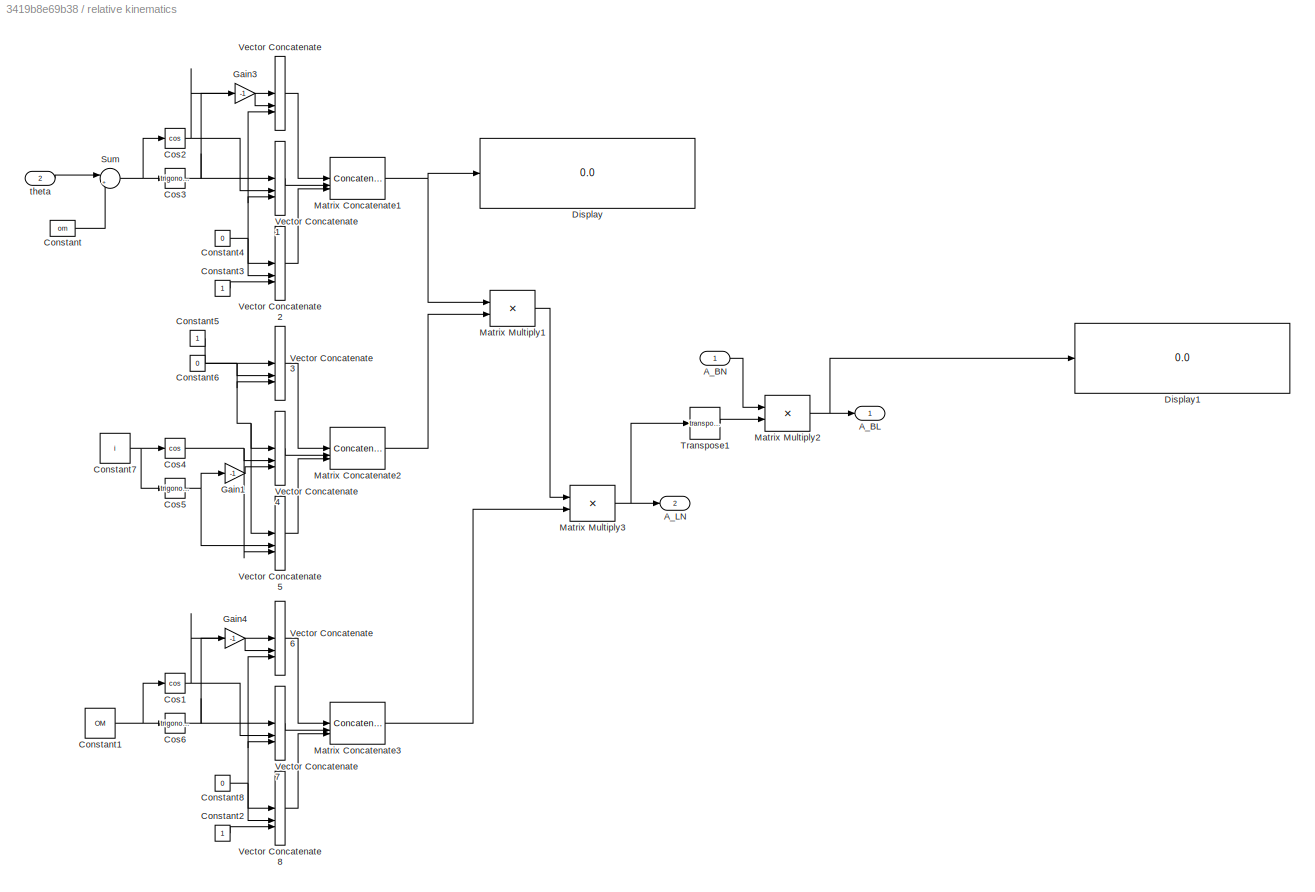
BLOCK [SubSystem] relative kinematics
BLOCK [Outport] relative kinematics/A_BL
BLOCK [Inport] relative kinematics/A_BN
BLOCK [Outport] relative kinematics/A_LN
  Port = 2
BLOCK [Constant] relative kinematics/Constant
  Value = om
BLOCK [Constant] relative kinematics/Constant1
  Value = OM
BLOCK [Constant] relative kinematics/Constant2
BLOCK [Constant] relative kinematics/Constant3
BLOCK [Constant] relative kinematics/Constant4
  Value = 0
BLOCK [Constant] relative kinematics/Constant5
BLOCK [Constant] relative kinematics/Constant6
  Value = 0
BLOCK [Constant] relative kinematics/Constant7
  Value = i
BLOCK [Constant] relative kinematics/Constant8
  Value = 0
BLOCK [Trigonometry] relative kinematics/Cos1
  Operator = cos
BLOCK [Trigonometry] relative kinematics/Cos2
  Operator = cos
BLOCK [Trigonometry] relative kinematics/Cos3
BLOCK [Trigonometry] relative kinematics/Cos4
  Operator = cos
BLOCK [Trigonometry] relative kinematics/Cos5
BLOCK [Trigonometry] relative kinematics/Cos6
BLOCK [Display] relative kinematics/Display
  Decimation = 1
BLOCK [Display] relative kinematics/Display1
  Decimation = 1
BLOCK [Gain] relative kinematics/Gain1
  Gain = -1
BLOCK [Gain] relative kinematics/Gain3
  Gain = -1
BLOCK [Gain] relative kinematics/Gain4
  Gain = -1
BLOCK [Concatenate] relative kinematics/Matrix Concatenate1
  ConcatenateDimension = 2
  Mode = Multidimensional array
  NumInputs = 3
BLOCK [Concatenate] relative kinematics/Matrix Concatenate2
  ConcatenateDimension = 2
  Mode = Multidimensional array
  NumInputs = 3
BLOCK [Concatenate] relative kinematics/Matrix Concatenate3
  ConcatenateDimension = 2
  Mode = Multidimensional array
  NumInputs = 3
BLOCK [Product] relative kinematics/Matrix Multiply1
  Multiplication = Matrix(*)
BLOCK [Product] relative kinematics/Matrix Multiply2
  Multiplication = Matrix(*)
BLOCK [Product] relative kinematics/Matrix Multiply3
  Multiplication = Matrix(*)
BLOCK [Sum] relative kinematics/Sum
  Inputs = |++
BLOCK [Math] relative kinematics/Transpose1
  Operator = transpose
BLOCK [Concatenate] relative kinematics/Vector Concatenate
  NumInputs = 3
BLOCK [Concatenate] relative kinematics/Vector Concatenate1
  NumInputs = 3
BLOCK [Concatenate] relative kinematics/Vector Concatenate2
  NumInputs = 3
BLOCK [Concatenate] relative kinematics/Vector Concatenate3
  NumInputs = 3
BLOCK [Concatenate] relative kinematics/Vector Concatenate4
  NumInputs = 3
BLOCK [Concatenate] relative kinematics/Vector Concatenate5
  NumInputs = 3
BLOCK [Concatenate] relative kinematics/Vector Concatenate6
  NumInputs = 3
BLOCK [Concatenate] relative kinematics/Vector Concatenate7
  NumInputs = 3
BLOCK [Concatenate] relative kinematics/Vector Concatenate8
  NumInputs = 3
BLOCK [Inport] relative kinematics/theta
  Port = 2
BLOCK [SubSystem] sun direction 
  NameLocation = top
BLOCK [Inport] sun direction /A_BN
BLOCK [Clock] sun direction /Clock1
BLOCK [Constant] sun direction /Constant
  Value = n_sun
BLOCK [Constant] sun direction /Constant1
  Value = eps
BLOCK [Trigonometry] sun direction /Cos1
  Operator = cos
BLOCK [Trigonometry] sun direction /Cos2
  Operator = cos
BLOCK [Display] sun direction /Display
  Decimation = 1
BLOCK [Product] sun direction /Matrix Multiply
  Multiplication = Matrix(*)
BLOCK [Reference] sun direction /Normalization  REF=dspmathops/Normalization
  SourceBlock = dspmathops/Normalization
  SourceType = Normalization
BLOCK [Product] sun direction /Product
BLOCK [Product] sun direction /Product1
BLOCK [Product] sun direction /Product2
BLOCK [Outport] sun direction /S_b
BLOCK [Trigonometry] sun direction /Sin
BLOCK [Trigonometry] sun direction /Sin1
BLOCK [Concatenate] sun direction /Vector Concatenate
  NumInputs = 3
ANNOTATION Air Drag Torque: Force Calculation
ANNOTATION Air Drag Torque: Torque Calculation
LINE Air Drag Torque/Coeff./Constant1:1 -> Air Drag Torque/Coeff./Product:2
LINE Air Drag Torque/Coeff./Constant2:1 -> Air Drag Torque/Coeff./Product1:1
LINE Air Drag Torque/Coeff./Constant3:1 -> Air Drag Torque/Coeff./Product1:2
LINE Air Drag Torque/Coeff./Constant4:1 -> Air Drag Torque/Coeff./Sum1:2
LINE Air Drag Torque/Coeff./Constant5:1 -> Air Drag Torque/Coeff./Product1:4
LINE Air Drag Torque/Coeff./Constant6:1 -> Air Drag Torque/Coeff./Divide:2
LINE Air Drag Torque/Coeff./Constant:1 -> Air Drag Torque/Coeff./Sum:2
LINE Air Drag Torque/Coeff./Divide:1 -> Air Drag Torque/Coeff./Gain:1
LINE Air Drag Torque/Coeff./Exp:1 -> Air Drag Torque/Coeff./Product:1
LINE Air Drag Torque/Coeff./Gain:1 -> Air Drag Torque/Coeff./Exp:1
LINE Air Drag Torque/Coeff./Product1:1 -> Air Drag Torque/Coeff./Out1:1
LINE Air Drag Torque/Coeff./Product:1 -> Air Drag Torque/Coeff./Product1:3
LINE Air Drag Torque/Coeff./Sum1:1 -> Air Drag Torque/Coeff./Divide:1
LINE Air Drag Torque/Coeff./Sum:1 -> Air Drag Torque/Coeff./Sum1:1
LINE Air Drag Torque/Coeff./rnorm:1 -> Air Drag Torque/Coeff./Sum:1
LINE Air Drag Torque/Coeff.:1 -> Air Drag Torque/Product1:3
NET Air Drag Torque/Constant1:1 -> Air Drag Torque/Matrix Multiply1:1, Air Drag Torque/Transpose:1
LINE Air Drag Torque/Constant2:1 -> Air Drag Torque/Reshape1:2
LINE Air Drag Torque/Constant3:1 -> Air Drag Torque/Matrix Multiply4:1
NET Air Drag Torque/Constant4:1 -> Air Drag Torque/Reshape2:2, Air Drag Torque/Transpose4:1
LINE Air Drag Torque/Constant:1 -> Air Drag Torque/Gain:1
LINE Air Drag Torque/Divide1:1 -> Air Drag Torque/Product1:1
LINE Air Drag Torque/Divide:1 -> Air Drag Torque/Product:1
NET Air Drag Torque/Extract Diagonal1:1 -> Air Drag Torque/Product:2, Air Drag Torque/Sqrt:1
LINE Air Drag Torque/Extract Diagonal2:1 -> Air Drag Torque/Drag Torque:1
LINE Air Drag Torque/Extract Diagonal:1 -> Air Drag Torque/Surface Check:1
LINE Air Drag Torque/Gain1:1 -> Air Drag Torque/concatenate:1
LINE Air Drag Torque/Gain:1 -> Air Drag Torque/Matrix Multiply:1
LINE Air Drag Torque/Matrix Concatenate1:1 -> Air Drag Torque/Transpose2:1
LINE Air Drag Torque/Matrix Concatenate:1 -> Air Drag Torque/Transpose3:1
LINE Air Drag Torque/Matrix Multiply1:1 -> Air Drag Torque/Extract Diagonal:1
LINE Air Drag Torque/Matrix Multiply2:1 -> Air Drag Torque/Extract Diagonal1:1
LINE Air Drag Torque/Matrix Multiply3:1 -> Air Drag Torque/Extract Diagonal2:1
LINE Air Drag Torque/Matrix Multiply4:1 -> Air Drag Torque/Reshape2:1
LINE Air Drag Torque/Matrix Multiply:1 -> Air Drag Torque/Sum:2
LINE Air Drag Torque/Product1:1 -> Air Drag Torque/Reshape1:1
NET Air Drag Torque/Product:1 -> Air Drag Torque/Matrix Concatenate:1, Air Drag Torque/Matrix Concatenate:2, Air Drag Torque/Matrix Concatenate:3
LINE Air Drag Torque/Reshape1:1 -> Air Drag Torque/Matrix Multiply4:2
LINE Air Drag Torque/Reshape2:1 -> Air Drag Torque/Matrix Multiply3:1
NET Air Drag Torque/Reshape:1 -> Air Drag Torque/Divide1:1, Air Drag Torque/Matrix Multiply1:2, Air Drag Torque/Matrix Multiply2:2, Air Drag Torque/Transpose1:1
NET Air Drag Torque/Sqrt:1 -> Air Drag Torque/Divide:2, Air Drag Torque/Matrix Concatenate1:1, Air Drag Torque/Matrix Concatenate1:2, Air Drag Torque/Matrix Concatenate1:3
LINE Air Drag Torque/Sum:1 -> Air Drag Torque/Reshape:1
LINE Air Drag Torque/Surface Check/Compare To Constant:1 -> Air Drag Torque/Surface Check/Product5:2
NET Air Drag Torque/Surface Check/In1:1 -> Air Drag Torque/Surface Check/Compare To Constant:1, Air Drag Torque/Surface Check/Product5:1
LINE Air Drag Torque/Surface Check/Product5:1 -> Air Drag Torque/Surface Check/Out1:1
LINE Air Drag Torque/Surface Check:1 -> Air Drag Torque/Divide:1
LINE Air Drag Torque/Transpose1:1 -> Air Drag Torque/Matrix Multiply2:1
LINE Air Drag Torque/Transpose2:1 -> Air Drag Torque/Divide1:2
LINE Air Drag Torque/Transpose3:1 -> Air Drag Torque/Product1:2
LINE Air Drag Torque/Transpose4:1 -> Air Drag Torque/Matrix Multiply3:2
LINE Air Drag Torque/Transpose:1 -> Air Drag Torque/Reshape:2
LINE Air Drag Torque/concatenate/Vector Concatenate:1 -> Air Drag Torque/concatenate/Out1:1
NET Air Drag Torque/concatenate/v_r,B:1 -> Air Drag Torque/concatenate/Vector Concatenate:1, Air Drag Torque/concatenate/Vector Concatenate:10, Air Drag Torque/concatenate/Vector Concatenate:11, Air Drag Torque/concatenate/Vector Concatenate:12, Air Drag Torque/concatenate/Vector Concatenate:13, Air Drag Torque/concatenate/Vector Concatenate:14, Air Drag Torque/concatenate/Vector Concatenate:2, Air Drag Torque/concatenate/Vector Concatenate:3, Air Drag Torque/concatenate/Vector Concatenate:4, Air Drag Torque/concatenate/Vector Concatenate:5, Air Drag Torque/concatenate/Vector Concatenate:6, Air Drag Torque/concatenate/Vector Concatenate:7, Air Drag Torque/concatenate/Vector Concatenate:8, Air Drag Torque/concatenate/Vector Concatenate:9
NET Air Drag Torque/concatenate1/In1:1 -> Air Drag Torque/concatenate1/Vector Concatenate:1, Air Drag Torque/concatenate1/Vector Concatenate:10, Air Drag Torque/concatenate1/Vector Concatenate:11, Air Drag Torque/concatenate1/Vector Concatenate:12, Air Drag Torque/concatenate1/Vector Concatenate:13, Air Drag Torque/concatenate1/Vector Concatenate:14, Air Drag Torque/concatenate1/Vector Concatenate:2, Air Drag Torque/concatenate1/Vector Concatenate:3, Air Drag Torque/concatenate1/Vector Concatenate:4, Air Drag Torque/concatenate1/Vector Concatenate:5, Air Drag Torque/concatenate1/Vector Concatenate:6, Air Drag Torque/concatenate1/Vector Concatenate:7, Air Drag Torque/concatenate1/Vector Concatenate:8, Air Drag Torque/concatenate1/Vector Concatenate:9
LINE Air Drag Torque/concatenate1/Vector Concatenate:1 -> Air Drag Torque/concatenate1/Out1:1
LINE Air Drag Torque/concatenate1:1 -> Air Drag Torque/Matrix Multiply:2
LINE Air Drag Torque/concatenate:1 -> Air Drag Torque/Sum:1
LINE Air Drag Torque/rnorm:1 -> Air Drag Torque/Coeff.:1
LINE Air Drag Torque/v_r,B:1 -> Air Drag Torque/Gain1:1
LINE Air Drag Torque/w:1 -> Air Drag Torque/concatenate1:1
NET Air Drag Torque:1 -> Sum:4, To Workspace3:1
LINE Constant1:1 -> Matrix Multiply3:1
NET Constant2:1 -> Product1:1, Product2:1
LINE Constant3:1 -> Vector Concatenate:3
LINE Constant:1 -> Matrix Multiply1:2
LINE Demux:1 -> Gain:1
LINE Demux:2 -> Product1:2
LINE Demux:3 -> Terminator:1
LINE Dynamics/Constant1:1 -> Dynamics/Product1:1
LINE Dynamics/Constant:1 -> Dynamics/Product:1
LINE Dynamics/Cross Product:1 -> Dynamics/Sum:2
LINE Dynamics/Disturb.:1 -> Dynamics/Reshape:1
NET Dynamics/Integrator:1 -> Dynamics/Cross Product:1, Dynamics/Product:2, Dynamics/w:1
LINE Dynamics/Product1:1 -> Dynamics/Integrator:1
LINE Dynamics/Product:1 -> Dynamics/Cross Product:2
LINE Dynamics/Reshape:1 -> Dynamics/Sum:1
LINE Dynamics/Sum:1 -> Dynamics/Product1:2
NET Dynamics:1 -> Air Drag Torque:2, Kinematics:1, To Workspace4:1
LINE From1:1 -> Subsystem:2
LINE From:1 -> Demux:1
LINE Gain:1 -> Product2:2
LINE Gravity Torque/Constant1:1 -> Gravity Torque/Matrix Multiply:1
NET Gravity Torque/Constant3:1 -> Gravity Torque/Divide:2, Gravity Torque/Power:2
LINE Gravity Torque/Constant:1 -> Gravity Torque/Divide:1
LINE Gravity Torque/Cross Product:1 -> Gravity Torque/Product:1
LINE Gravity Torque/Divide:1 -> Gravity Torque/Gain:1
LINE Gravity Torque/Gain:1 -> Gravity Torque/Product:2
LINE Gravity Torque/Matrix Multiply:1 -> Gravity Torque/Cross Product:1
LINE Gravity Torque/Power:1 -> Gravity Torque/Divide:3
LINE Gravity Torque/Product:1 -> Gravity Torque/GRAV_torque:1
NET Gravity Torque/rb:1 -> Gravity Torque/Cross Product:2, Gravity Torque/Matrix Multiply:2
LINE Gravity Torque/rnorm:1 -> Gravity Torque/Power:1
NET Gravity Torque:1 -> Sum:3, To Workspace2:1
NET Kinematics/Kinematics 312/A - s_312/A:1 -> Kinematics/Kinematics 312/A - s_312/Selector1:1, Kinematics/Kinematics 312/A - s_312/Selector2:1, Kinematics/Kinematics 312/A - s_312/Selector3:1, Kinematics/Kinematics 312/A - s_312/Selector4:1, Kinematics/Kinematics 312/A - s_312/Selector:1
LINE Kinematics/Kinematics 312/A - s_312/Asin:1 -> Kinematics/Kinematics 312/A - s_312/Mux:2
LINE Kinematics/Kinematics 312/A - s_312/Atan1:1 -> Kinematics/Kinematics 312/A - s_312/Mux:3
LINE Kinematics/Kinematics 312/A - s_312/Atan2:1 -> Kinematics/Kinematics 312/A - s_312/Mux:1
LINE Kinematics/Kinematics 312/A - s_312/Gain1:1 -> Kinematics/Kinematics 312/A - s_312/Atan1:1
LINE Kinematics/Kinematics 312/A - s_312/Gain:1 -> Kinematics/Kinematics 312/A - s_312/Atan2:1
LINE Kinematics/Kinematics 312/A - s_312/Mux:1 -> Kinematics/Kinematics 312/A - s_312/s:1
LINE Kinematics/Kinematics 312/A - s_312/Selector1:1 -> Kinematics/Kinematics 312/A - s_312/Atan2:2
LINE Kinematics/Kinematics 312/A - s_312/Selector2:1 -> Kinematics/Kinematics 312/A - s_312/Asin:1
LINE Kinematics/Kinematics 312/A - s_312/Selector3:1 -> Kinematics/Kinematics 312/A - s_312/Gain1:1
LINE Kinematics/Kinematics 312/A - s_312/Selector4:1 -> Kinematics/Kinematics 312/A - s_312/Atan1:2
LINE Kinematics/Kinematics 312/A - s_312/Selector:1 -> Kinematics/Kinematics 312/A - s_312/Gain:1
LINE Kinematics/Kinematics 312/A - s_312:1 -> Kinematics/Kinematics 312/IC:1
LINE Kinematics/Kinematics 312/Euler angles/Cos:1 -> Kinematics/Kinematics 312/Euler angles/Divide:2
NET Kinematics/Kinematics 312/Euler angles/Demux1:2 -> Kinematics/Kinematics 312/Euler angles/Cos:1, Kinematics/Kinematics 312/Euler angles/Tan:1
NET Kinematics/Kinematics 312/Euler angles/Demux1:3 -> Kinematics/Kinematics 312/Euler angles/Subsystem1:3, Kinematics/Kinematics 312/Euler angles/Subsystem2:3, Kinematics/Kinematics 312/Euler angles/Subsystem:3
NET Kinematics/Kinematics 312/Euler angles/Demux:1 -> Kinematics/Kinematics 312/Euler angles/Gain1:1, Kinematics/Kinematics 312/Euler angles/Gain:1, Kinematics/Kinematics 312/Euler angles/Subsystem1:1
LINE Kinematics/Kinematics 312/Euler angles/Demux:2 -> Kinematics/Kinematics 312/Euler angles/Sum:1
NET Kinematics/Kinematics 312/Euler angles/Demux:3 -> Kinematics/Kinematics 312/Euler angles/Subsystem1:2, Kinematics/Kinematics 312/Euler angles/Subsystem2:1, Kinematics/Kinematics 312/Euler angles/Subsystem:1
LINE Kinematics/Kinematics 312/Euler angles/Divide:1 -> Kinematics/Kinematics 312/Euler angles/Mux:1
LINE Kinematics/Kinematics 312/Euler angles/Gain1:1 -> Kinematics/Kinematics 312/Euler angles/Subsystem2:2
LINE Kinematics/Kinematics 312/Euler angles/Gain:1 -> Kinematics/Kinematics 312/Euler angles/Subsystem:2
NET Kinematics/Kinematics 312/Euler angles/Integrator:1 -> Kinematics/Kinematics 312/Euler angles/Demux1:1, Kinematics/Kinematics 312/Euler angles/s:1
LINE Kinematics/Kinematics 312/Euler angles/Integrator:state -> Kinematics/Kinematics 312/Euler angles/Goto:1
LINE Kinematics/Kinematics 312/Euler angles/Mux:1 -> Kinematics/Kinematics 312/Euler angles/Integrator:1
LINE Kinematics/Kinematics 312/Euler angles/Product:1 -> Kinematics/Kinematics 312/Euler angles/Sum:2
LINE Kinematics/Kinematics 312/Euler angles/Subsystem/Cos:1 -> Kinematics/Kinematics 312/Euler angles/Subsystem/Product:2
LINE Kinematics/Kinematics 312/Euler angles/Subsystem/In1:1 -> Kinematics/Kinematics 312/Euler angles/Subsystem/Product:1
LINE Kinematics/Kinematics 312/Euler angles/Subsystem/In2:1 -> Kinematics/Kinematics 312/Euler angles/Subsystem/Product1:2
NET Kinematics/Kinematics 312/Euler angles/Subsystem/In3:1 -> Kinematics/Kinematics 312/Euler angles/Subsystem/Cos:1, Kinematics/Kinematics 312/Euler angles/Subsystem/Sin:1
LINE Kinematics/Kinematics 312/Euler angles/Subsystem/Product1:1 -> Kinematics/Kinematics 312/Euler angles/Subsystem/Sum:2
LINE Kinematics/Kinematics 312/Euler angles/Subsystem/Product:1 -> Kinematics/Kinematics 312/Euler angles/Subsystem/Sum:1
LINE Kinematics/Kinematics 312/Euler angles/Subsystem/Sin:1 -> Kinematics/Kinematics 312/Euler angles/Subsystem/Product1:1
LINE Kinematics/Kinematics 312/Euler angles/Subsystem/Sum:1 -> Kinematics/Kinematics 312/Euler angles/Subsystem/Out1:1
LINE Kinematics/Kinematics 312/Euler angles/Subsystem1/Cos:1 -> Kinematics/Kinematics 312/Euler angles/Subsystem1/Product:2
LINE Kinematics/Kinematics 312/Euler angles/Subsystem1/In1:1 -> Kinematics/Kinematics 312/Euler angles/Subsystem1/Product:1
LINE Kinematics/Kinematics 312/Euler angles/Subsystem1/In2:1 -> Kinematics/Kinematics 312/Euler angles/Subsystem1/Product1:2
NET Kinematics/Kinematics 312/Euler angles/Subsystem1/In3:1 -> Kinematics/Kinematics 312/Euler angles/Subsystem1/Cos:1, Kinematics/Kinematics 312/Euler angles/Subsystem1/Sin:1
LINE Kinematics/Kinematics 312/Euler angles/Subsystem1/Product1:1 -> Kinematics/Kinematics 312/Euler angles/Subsystem1/Sum:2
LINE Kinematics/Kinematics 312/Euler angles/Subsystem1/Product:1 -> Kinematics/Kinematics 312/Euler angles/Subsystem1/Sum:1
LINE Kinematics/Kinematics 312/Euler angles/Subsystem1/Sin:1 -> Kinematics/Kinematics 312/Euler angles/Subsystem1/Product1:1
LINE Kinematics/Kinematics 312/Euler angles/Subsystem1/Sum:1 -> Kinematics/Kinematics 312/Euler angles/Subsystem1/Out1:1
LINE Kinematics/Kinematics 312/Euler angles/Subsystem1:1 -> Kinematics/Kinematics 312/Euler angles/Mux:2
LINE Kinematics/Kinematics 312/Euler angles/Subsystem2/Cos:1 -> Kinematics/Kinematics 312/Euler angles/Subsystem2/Product:2
LINE Kinematics/Kinematics 312/Euler angles/Subsystem2/In1:1 -> Kinematics/Kinematics 312/Euler angles/Subsystem2/Product:1
LINE Kinematics/Kinematics 312/Euler angles/Subsystem2/In2:1 -> Kinematics/Kinematics 312/Euler angles/Subsystem2/Product1:2
NET Kinematics/Kinematics 312/Euler angles/Subsystem2/In3:1 -> Kinematics/Kinematics 312/Euler angles/Subsystem2/Cos:1, Kinematics/Kinematics 312/Euler angles/Subsystem2/Sin:1
LINE Kinematics/Kinematics 312/Euler angles/Subsystem2/Product1:1 -> Kinematics/Kinematics 312/Euler angles/Subsystem2/Sum:2
LINE Kinematics/Kinematics 312/Euler angles/Subsystem2/Product:1 -> Kinematics/Kinematics 312/Euler angles/Subsystem2/Sum:1
LINE Kinematics/Kinematics 312/Euler angles/Subsystem2/Sin:1 -> Kinematics/Kinematics 312/Euler angles/Subsystem2/Product1:1
LINE Kinematics/Kinematics 312/Euler angles/Subsystem2/Sum:1 -> Kinematics/Kinematics 312/Euler angles/Subsystem2/Out1:1
LINE Kinematics/Kinematics 312/Euler angles/Subsystem2:1 -> Kinematics/Kinematics 312/Euler angles/Product:2
LINE Kinematics/Kinematics 312/Euler angles/Subsystem:1 -> Kinematics/Kinematics 312/Euler angles/Divide:1
LINE Kinematics/Kinematics 312/Euler angles/Sum:1 -> Kinematics/Kinematics 312/Euler angles/Mux:3
LINE Kinematics/Kinematics 312/Euler angles/Tan:1 -> Kinematics/Kinematics 312/Euler angles/Product:1
LINE Kinematics/Kinematics 312/Euler angles/s0:1 -> Kinematics/Kinematics 312/Euler angles/Integrator:2
LINE Kinematics/Kinematics 312/Euler angles/w:1 -> Kinematics/Kinematics 312/Euler angles/Demux:1
LINE Kinematics/Kinematics 312/Euler angles:1 -> Kinematics/Kinematics 312/s_312 - A:1
LINE Kinematics/Kinematics 312/From:1 -> Kinematics/Kinematics 312/s_313 - A:1
LINE Kinematics/Kinematics 312/IC:1 -> Kinematics/Kinematics 312/Euler angles:2
LINE Kinematics/Kinematics 312/s_312 - A/Demux:1 -> Kinematics/Kinematics 312/s_312 - A/R3:1
LINE Kinematics/Kinematics 312/s_312 - A/Demux:2 -> Kinematics/Kinematics 312/s_312 - A/R1:1
LINE Kinematics/Kinematics 312/s_312 - A/Demux:3 -> Kinematics/Kinematics 312/s_312 - A/R2:1
LINE Kinematics/Kinematics 312/s_312 - A/Product:1 -> Kinematics/Kinematics 312/s_312 - A/A:1
NET Kinematics/Kinematics 312/s_312 - A/R1/Constant1:1 -> Kinematics/Kinematics 312/s_312 - A/R1/Vector Concatenate1:1, Kinematics/Kinematics 312/s_312 - A/R1/Vector Concatenate:1
LINE Kinematics/Kinematics 312/s_312 - A/R1/Constant:1 -> Kinematics/Kinematics 312/s_312 - A/R1/Matrix Concatenate:1
NET Kinematics/Kinematics 312/s_312 - A/R1/Cos:1 -> Kinematics/Kinematics 312/s_312 - A/R1/Vector Concatenate1:2, Kinematics/Kinematics 312/s_312 - A/R1/Vector Concatenate:3
LINE Kinematics/Kinematics 312/s_312 - A/R1/Gain:1 -> Kinematics/Kinematics 312/s_312 - A/R1/Vector Concatenate1:3
LINE Kinematics/Kinematics 312/s_312 - A/R1/Matrix Concatenate:1 -> Kinematics/Kinematics 312/s_312 - A/R1/R1:1
NET Kinematics/Kinematics 312/s_312 - A/R1/Sin:1 -> Kinematics/Kinematics 312/s_312 - A/R1/Gain:1, Kinematics/Kinematics 312/s_312 - A/R1/Vector Concatenate:2
LINE Kinematics/Kinematics 312/s_312 - A/R1/Vector Concatenate1:1 -> Kinematics/Kinematics 312/s_312 - A/R1/Matrix Concatenate:2
LINE Kinematics/Kinematics 312/s_312 - A/R1/Vector Concatenate:1 -> Kinematics/Kinematics 312/s_312 - A/R1/Matrix Concatenate:3
NET Kinematics/Kinematics 312/s_312 - A/R1/x:1 -> Kinematics/Kinematics 312/s_312 - A/R1/Cos:1, Kinematics/Kinematics 312/s_312 - A/R1/Sin:1
LINE Kinematics/Kinematics 312/s_312 - A/R1:1 -> Kinematics/Kinematics 312/s_312 - A/Product:2
NET Kinematics/Kinematics 312/s_312 - A/R2/Constant1:1 -> Kinematics/Kinematics 312/s_312 - A/R2/Vector Concatenate1:2, Kinematics/Kinematics 312/s_312 - A/R2/Vector Concatenate:2
LINE Kinematics/Kinematics 312/s_312 - A/R2/Constant:1 -> Kinematics/Kinematics 312/s_312 - A/R2/Matrix Concatenate:2
NET Kinematics/Kinematics 312/s_312 - A/R2/Cos:1 -> Kinematics/Kinematics 312/s_312 - A/R2/Vector Concatenate1:3, Kinematics/Kinematics 312/s_312 - A/R2/Vector Concatenate:1
LINE Kinematics/Kinematics 312/s_312 - A/R2/Gain:1 -> Kinematics/Kinematics 312/s_312 - A/R2/Vector Concatenate1:1
LINE Kinematics/Kinematics 312/s_312 - A/R2/Matrix Concatenate:1 -> Kinematics/Kinematics 312/s_312 - A/R2/R2:1
NET Kinematics/Kinematics 312/s_312 - A/R2/Sin:1 -> Kinematics/Kinematics 312/s_312 - A/R2/Gain:1, Kinematics/Kinematics 312/s_312 - A/R2/Vector Concatenate:3
LINE Kinematics/Kinematics 312/s_312 - A/R2/Vector Concatenate1:1 -> Kinematics/Kinematics 312/s_312 - A/R2/Matrix Concatenate:3
LINE Kinematics/Kinematics 312/s_312 - A/R2/Vector Concatenate:1 -> Kinematics/Kinematics 312/s_312 - A/R2/Matrix Concatenate:1
NET Kinematics/Kinematics 312/s_312 - A/R2/x:1 -> Kinematics/Kinematics 312/s_312 - A/R2/Cos:1, Kinematics/Kinematics 312/s_312 - A/R2/Sin:1
LINE Kinematics/Kinematics 312/s_312 - A/R2:1 -> Kinematics/Kinematics 312/s_312 - A/Product:1
NET Kinematics/Kinematics 312/s_312 - A/R3/Constant1:1 -> Kinematics/Kinematics 312/s_312 - A/R3/Vector Concatenate1:3, Kinematics/Kinematics 312/s_312 - A/R3/Vector Concatenate:3
LINE Kinematics/Kinematics 312/s_312 - A/R3/Constant:1 -> Kinematics/Kinematics 312/s_312 - A/R3/Matrix Concatenate:3
NET Kinematics/Kinematics 312/s_312 - A/R3/Cos:1 -> Kinematics/Kinematics 312/s_312 - A/R3/Vector Concatenate1:2, Kinematics/Kinematics 312/s_312 - A/R3/Vector Concatenate:1
LINE Kinematics/Kinematics 312/s_312 - A/R3/Gain:1 -> Kinematics/Kinematics 312/s_312 - A/R3/Vector Concatenate:2
LINE Kinematics/Kinematics 312/s_312 - A/R3/Matrix Concatenate:1 -> Kinematics/Kinematics 312/s_312 - A/R3/R3:1
NET Kinematics/Kinematics 312/s_312 - A/R3/Sin:1 -> Kinematics/Kinematics 312/s_312 - A/R3/Gain:1, Kinematics/Kinematics 312/s_312 - A/R3/Vector Concatenate1:1
LINE Kinematics/Kinematics 312/s_312 - A/R3/Vector Concatenate1:1 -> Kinematics/Kinematics 312/s_312 - A/R3/Matrix Concatenate:2
LINE Kinematics/Kinematics 312/s_312 - A/R3/Vector Concatenate:1 -> Kinematics/Kinematics 312/s_312 - A/R3/Matrix Concatenate:1
NET Kinematics/Kinematics 312/s_312 - A/R3/x:1 -> Kinematics/Kinematics 312/s_312 - A/R3/Cos:1, Kinematics/Kinematics 312/s_312 - A/R3/Sin:1
LINE Kinematics/Kinematics 312/s_312 - A/R3:1 -> Kinematics/Kinematics 312/s_312 - A/Product:3
LINE Kinematics/Kinematics 312/s_312 - A/s:1 -> Kinematics/Kinematics 312/s_312 - A/Demux:1
LINE Kinematics/Kinematics 312/s_312 - A:1 -> Kinematics/Kinematics 312/A:1
LINE Kinematics/Kinematics 312/s_313 - A/Demux:1 -> Kinematics/Kinematics 312/s_313 - A/R3_1:1
LINE Kinematics/Kinematics 312/s_313 - A/Demux:2 -> Kinematics/Kinematics 312/s_313 - A/R1:1
LINE Kinematics/Kinematics 312/s_313 - A/Demux:3 -> Kinematics/Kinematics 312/s_313 - A/R3_2:1
LINE Kinematics/Kinematics 312/s_313 - A/Product:1 -> Kinematics/Kinematics 312/s_313 - A/A:1
NET Kinematics/Kinematics 312/s_313 - A/R1/Constant1:1 -> Kinematics/Kinematics 312/s_313 - A/R1/Vector Concatenate1:1, Kinematics/Kinematics 312/s_313 - A/R1/Vector Concatenate:1
LINE Kinematics/Kinematics 312/s_313 - A/R1/Constant:1 -> Kinematics/Kinematics 312/s_313 - A/R1/Matrix Concatenate:1
NET Kinematics/Kinematics 312/s_313 - A/R1/Cos:1 -> Kinematics/Kinematics 312/s_313 - A/R1/Vector Concatenate1:2, Kinematics/Kinematics 312/s_313 - A/R1/Vector Concatenate:3
LINE Kinematics/Kinematics 312/s_313 - A/R1/Gain:1 -> Kinematics/Kinematics 312/s_313 - A/R1/Vector Concatenate1:3
LINE Kinematics/Kinematics 312/s_313 - A/R1/Matrix Concatenate:1 -> Kinematics/Kinematics 312/s_313 - A/R1/R1:1
NET Kinematics/Kinematics 312/s_313 - A/R1/Sin:1 -> Kinematics/Kinematics 312/s_313 - A/R1/Gain:1, Kinematics/Kinematics 312/s_313 - A/R1/Vector Concatenate:2
LINE Kinematics/Kinematics 312/s_313 - A/R1/Vector Concatenate1:1 -> Kinematics/Kinematics 312/s_313 - A/R1/Matrix Concatenate:2
LINE Kinematics/Kinematics 312/s_313 - A/R1/Vector Concatenate:1 -> Kinematics/Kinematics 312/s_313 - A/R1/Matrix Concatenate:3
NET Kinematics/Kinematics 312/s_313 - A/R1/x:1 -> Kinematics/Kinematics 312/s_313 - A/R1/Cos:1, Kinematics/Kinematics 312/s_313 - A/R1/Sin:1
LINE Kinematics/Kinematics 312/s_313 - A/R1:1 -> Kinematics/Kinematics 312/s_313 - A/Product:2
NET Kinematics/Kinematics 312/s_313 - A/R3_1/Constant1:1 -> Kinematics/Kinematics 312/s_313 - A/R3_1/Vector Concatenate1:3, Kinematics/Kinematics 312/s_313 - A/R3_1/Vector Concatenate:3
LINE Kinematics/Kinematics 312/s_313 - A/R3_1/Constant:1 -> Kinematics/Kinematics 312/s_313 - A/R3_1/Matrix Concatenate:3
NET Kinematics/Kinematics 312/s_313 - A/R3_1/Cos:1 -> Kinematics/Kinematics 312/s_313 - A/R3_1/Vector Concatenate1:2, Kinematics/Kinematics 312/s_313 - A/R3_1/Vector Concatenate:1
LINE Kinematics/Kinematics 312/s_313 - A/R3_1/Gain:1 -> Kinematics/Kinematics 312/s_313 - A/R3_1/Vector Concatenate:2
LINE Kinematics/Kinematics 312/s_313 - A/R3_1/Matrix Concatenate:1 -> Kinematics/Kinematics 312/s_313 - A/R3_1/R3:1
NET Kinematics/Kinematics 312/s_313 - A/R3_1/Sin:1 -> Kinematics/Kinematics 312/s_313 - A/R3_1/Gain:1, Kinematics/Kinematics 312/s_313 - A/R3_1/Vector Concatenate1:1
LINE Kinematics/Kinematics 312/s_313 - A/R3_1/Vector Concatenate1:1 -> Kinematics/Kinematics 312/s_313 - A/R3_1/Matrix Concatenate:2
LINE Kinematics/Kinematics 312/s_313 - A/R3_1/Vector Concatenate:1 -> Kinematics/Kinematics 312/s_313 - A/R3_1/Matrix Concatenate:1
NET Kinematics/Kinematics 312/s_313 - A/R3_1/x:1 -> Kinematics/Kinematics 312/s_313 - A/R3_1/Cos:1, Kinematics/Kinematics 312/s_313 - A/R3_1/Sin:1
LINE Kinematics/Kinematics 312/s_313 - A/R3_1:1 -> Kinematics/Kinematics 312/s_313 - A/Product:3
NET Kinematics/Kinematics 312/s_313 - A/R3_2/Constant1:1 -> Kinematics/Kinematics 312/s_313 - A/R3_2/Vector Concatenate1:3, Kinematics/Kinematics 312/s_313 - A/R3_2/Vector Concatenate:3
LINE Kinematics/Kinematics 312/s_313 - A/R3_2/Constant:1 -> Kinematics/Kinematics 312/s_313 - A/R3_2/Matrix Concatenate:3
NET Kinematics/Kinematics 312/s_313 - A/R3_2/Cos:1 -> Kinematics/Kinematics 312/s_313 - A/R3_2/Vector Concatenate1:2, Kinematics/Kinematics 312/s_313 - A/R3_2/Vector Concatenate:1
LINE Kinematics/Kinematics 312/s_313 - A/R3_2/Gain:1 -> Kinematics/Kinematics 312/s_313 - A/R3_2/Vector Concatenate:2
LINE Kinematics/Kinematics 312/s_313 - A/R3_2/Matrix Concatenate:1 -> Kinematics/Kinematics 312/s_313 - A/R3_2/R3:1
NET Kinematics/Kinematics 312/s_313 - A/R3_2/Sin:1 -> Kinematics/Kinematics 312/s_313 - A/R3_2/Gain:1, Kinematics/Kinematics 312/s_313 - A/R3_2/Vector Concatenate1:1
LINE Kinematics/Kinematics 312/s_313 - A/R3_2/Vector Concatenate1:1 -> Kinematics/Kinematics 312/s_313 - A/R3_2/Matrix Concatenate:2
LINE Kinematics/Kinematics 312/s_313 - A/R3_2/Vector Concatenate:1 -> Kinematics/Kinematics 312/s_313 - A/R3_2/Matrix Concatenate:1
NET Kinematics/Kinematics 312/s_313 - A/R3_2/x:1 -> Kinematics/Kinematics 312/s_313 - A/R3_2/Cos:1, Kinematics/Kinematics 312/s_313 - A/R3_2/Sin:1
LINE Kinematics/Kinematics 312/s_313 - A/R3_2:1 -> Kinematics/Kinematics 312/s_313 - A/Product:1
LINE Kinematics/Kinematics 312/s_313 - A/s:1 -> Kinematics/Kinematics 312/s_313 - A/Demux:1
LINE Kinematics/Kinematics 312/s_313 - A:1 -> Kinematics/Kinematics 312/A - s_312:1
LINE Kinematics/Kinematics 312/w:1 -> Kinematics/Kinematics 312/Euler angles:1
LINE Kinematics/Kinematics 312:1 -> Kinematics/Merge:1
NET Kinematics/Kinematics 313/A - s_313/A:1 -> Kinematics/Kinematics 313/A - s_313/Selector1:1, Kinematics/Kinematics 313/A - s_313/Selector2:1, Kinematics/Kinematics 313/A - s_313/Selector3:1, Kinematics/Kinematics 313/A - s_313/Selector4:1, Kinematics/Kinematics 313/A - s_313/Selector:1
LINE Kinematics/Kinematics 313/A - s_313/Acos:1 -> Kinematics/Kinematics 313/A - s_313/Mux:2
LINE Kinematics/Kinematics 313/A - s_313/Atan1:1 -> Kinematics/Kinematics 313/A - s_313/Mux:3
LINE Kinematics/Kinematics 313/A - s_313/Atan2:1 -> Kinematics/Kinematics 313/A - s_313/Mux:1
LINE Kinematics/Kinematics 313/A - s_313/Gain:1 -> Kinematics/Kinematics 313/A - s_313/Atan2:2
LINE Kinematics/Kinematics 313/A - s_313/Mux:1 -> Kinematics/Kinematics 313/A - s_313/s:1
LINE Kinematics/Kinematics 313/A - s_313/Selector1:1 -> Kinematics/Kinematics 313/A - s_313/Gain:1
LINE Kinematics/Kinematics 313/A - s_313/Selector2:1 -> Kinematics/Kinematics 313/A - s_313/Acos:1
LINE Kinematics/Kinematics 313/A - s_313/Selector3:1 -> Kinematics/Kinematics 313/A - s_313/Atan1:1
LINE Kinematics/Kinematics 313/A - s_313/Selector4:1 -> Kinematics/Kinematics 313/A - s_313/Atan1:2
LINE Kinematics/Kinematics 313/A - s_313/Selector:1 -> Kinematics/Kinematics 313/A - s_313/Atan2:1
LINE Kinematics/Kinematics 313/A - s_313:1 -> Kinematics/Kinematics 313/Euler angles:2
NET Kinematics/Kinematics 313/Euler angles/Demux1:2 -> Kinematics/Kinematics 313/Euler angles/Sin:1, Kinematics/Kinematics 313/Euler angles/Tan:1
NET Kinematics/Kinematics 313/Euler angles/Demux1:3 -> Kinematics/Kinematics 313/Euler angles/Subsystem1:3, Kinematics/Kinematics 313/Euler angles/Subsystem2:3, Kinematics/Kinematics 313/Euler angles/Subsystem:3
NET Kinematics/Kinematics 313/Euler angles/Demux:1 -> Kinematics/Kinematics 313/Euler angles/Subsystem1:1, Kinematics/Kinematics 313/Euler angles/Subsystem2:2, Kinematics/Kinematics 313/Euler angles/Subsystem:2
NET Kinematics/Kinematics 313/Euler angles/Demux:2 -> Kinematics/Kinematics 313/Euler angles/Gain:1, Kinematics/Kinematics 313/Euler angles/Subsystem2:1, Kinematics/Kinematics 313/Euler angles/Subsystem:1
LINE Kinematics/Kinematics 313/Euler angles/Demux:3 -> Kinematics/Kinematics 313/Euler angles/Sum:1
LINE Kinematics/Kinematics 313/Euler angles/Divide:1 -> Kinematics/Kinematics 313/Euler angles/Mux:1
LINE Kinematics/Kinematics 313/Euler angles/Gain:1 -> Kinematics/Kinematics 313/Euler angles/Subsystem1:2
NET Kinematics/Kinematics 313/Euler angles/Integrator:1 -> Kinematics/Kinematics 313/Euler angles/Demux1:1, Kinematics/Kinematics 313/Euler angles/s:1
LINE Kinematics/Kinematics 313/Euler angles/Integrator:state -> Kinematics/Kinematics 313/Euler angles/Goto:1
LINE Kinematics/Kinematics 313/Euler angles/Mux:1 -> Kinematics/Kinematics 313/Euler angles/Integrator:1
LINE Kinematics/Kinematics 313/Euler angles/Product:1 -> Kinematics/Kinematics 313/Euler angles/Sum:2
LINE Kinematics/Kinematics 313/Euler angles/Sin:1 -> Kinematics/Kinematics 313/Euler angles/Divide:2
LINE Kinematics/Kinematics 313/Euler angles/Subsystem/Cos:1 -> Kinematics/Kinematics 313/Euler angles/Subsystem/Product:2
LINE Kinematics/Kinematics 313/Euler angles/Subsystem/In1:1 -> Kinematics/Kinematics 313/Euler angles/Subsystem/Product:1
LINE Kinematics/Kinematics 313/Euler angles/Subsystem/In2:1 -> Kinematics/Kinematics 313/Euler angles/Subsystem/Product1:2
NET Kinematics/Kinematics 313/Euler angles/Subsystem/In3:1 -> Kinematics/Kinematics 313/Euler angles/Subsystem/Cos:1, Kinematics/Kinematics 313/Euler angles/Subsystem/Sin:1
LINE Kinematics/Kinematics 313/Euler angles/Subsystem/Product1:1 -> Kinematics/Kinematics 313/Euler angles/Subsystem/Sum:2
LINE Kinematics/Kinematics 313/Euler angles/Subsystem/Product:1 -> Kinematics/Kinematics 313/Euler angles/Subsystem/Sum:1
LINE Kinematics/Kinematics 313/Euler angles/Subsystem/Sin:1 -> Kinematics/Kinematics 313/Euler angles/Subsystem/Product1:1
LINE Kinematics/Kinematics 313/Euler angles/Subsystem/Sum:1 -> Kinematics/Kinematics 313/Euler angles/Subsystem/Out1:1
LINE Kinematics/Kinematics 313/Euler angles/Subsystem1/Cos:1 -> Kinematics/Kinematics 313/Euler angles/Subsystem1/Product:2
LINE Kinematics/Kinematics 313/Euler angles/Subsystem1/In1:1 -> Kinematics/Kinematics 313/Euler angles/Subsystem1/Product:1
LINE Kinematics/Kinematics 313/Euler angles/Subsystem1/In2:1 -> Kinematics/Kinematics 313/Euler angles/Subsystem1/Product1:2
NET Kinematics/Kinematics 313/Euler angles/Subsystem1/In3:1 -> Kinematics/Kinematics 313/Euler angles/Subsystem1/Cos:1, Kinematics/Kinematics 313/Euler angles/Subsystem1/Sin:1
LINE Kinematics/Kinematics 313/Euler angles/Subsystem1/Product1:1 -> Kinematics/Kinematics 313/Euler angles/Subsystem1/Sum:2
LINE Kinematics/Kinematics 313/Euler angles/Subsystem1/Product:1 -> Kinematics/Kinematics 313/Euler angles/Subsystem1/Sum:1
LINE Kinematics/Kinematics 313/Euler angles/Subsystem1/Sin:1 -> Kinematics/Kinematics 313/Euler angles/Subsystem1/Product1:1
LINE Kinematics/Kinematics 313/Euler angles/Subsystem1/Sum:1 -> Kinematics/Kinematics 313/Euler angles/Subsystem1/Out1:1
LINE Kinematics/Kinematics 313/Euler angles/Subsystem1:1 -> Kinematics/Kinematics 313/Euler angles/Mux:2
LINE Kinematics/Kinematics 313/Euler angles/Subsystem2/Cos:1 -> Kinematics/Kinematics 313/Euler angles/Subsystem2/Product:2
LINE Kinematics/Kinematics 313/Euler angles/Subsystem2/In1:1 -> Kinematics/Kinematics 313/Euler angles/Subsystem2/Product:1
LINE Kinematics/Kinematics 313/Euler angles/Subsystem2/In2:1 -> Kinematics/Kinematics 313/Euler angles/Subsystem2/Product1:2
NET Kinematics/Kinematics 313/Euler angles/Subsystem2/In3:1 -> Kinematics/Kinematics 313/Euler angles/Subsystem2/Cos:1, Kinematics/Kinematics 313/Euler angles/Subsystem2/Sin:1
LINE Kinematics/Kinematics 313/Euler angles/Subsystem2/Product1:1 -> Kinematics/Kinematics 313/Euler angles/Subsystem2/Sum:2
LINE Kinematics/Kinematics 313/Euler angles/Subsystem2/Product:1 -> Kinematics/Kinematics 313/Euler angles/Subsystem2/Sum:1
LINE Kinematics/Kinematics 313/Euler angles/Subsystem2/Sin:1 -> Kinematics/Kinematics 313/Euler angles/Subsystem2/Product1:1
LINE Kinematics/Kinematics 313/Euler angles/Subsystem2/Sum:1 -> Kinematics/Kinematics 313/Euler angles/Subsystem2/Out1:1
LINE Kinematics/Kinematics 313/Euler angles/Subsystem2:1 -> Kinematics/Kinematics 313/Euler angles/Product:2
LINE Kinematics/Kinematics 313/Euler angles/Subsystem:1 -> Kinematics/Kinematics 313/Euler angles/Divide:1
LINE Kinematics/Kinematics 313/Euler angles/Sum:1 -> Kinematics/Kinematics 313/Euler angles/Mux:3
LINE Kinematics/Kinematics 313/Euler angles/Tan:1 -> Kinematics/Kinematics 313/Euler angles/Product:1
LINE Kinematics/Kinematics 313/Euler angles/s0:1 -> Kinematics/Kinematics 313/Euler angles/Integrator:2
LINE Kinematics/Kinematics 313/Euler angles/w:1 -> Kinematics/Kinematics 313/Euler angles/Demux:1
LINE Kinematics/Kinematics 313/Euler angles:1 -> Kinematics/Kinematics 313/s_313 - A:1
LINE Kinematics/Kinematics 313/From:1 -> Kinematics/Kinematics 313/s_312 - A:1
LINE Kinematics/Kinematics 313/s_312 - A/Demux:1 -> Kinematics/Kinematics 313/s_312 - A/R3:1
LINE Kinematics/Kinematics 313/s_312 - A/Demux:2 -> Kinematics/Kinematics 313/s_312 - A/R1:1
LINE Kinematics/Kinematics 313/s_312 - A/Demux:3 -> Kinematics/Kinematics 313/s_312 - A/R2:1
LINE Kinematics/Kinematics 313/s_312 - A/Product:1 -> Kinematics/Kinematics 313/s_312 - A/A:1
NET Kinematics/Kinematics 313/s_312 - A/R1/Constant1:1 -> Kinematics/Kinematics 313/s_312 - A/R1/Vector Concatenate1:1, Kinematics/Kinematics 313/s_312 - A/R1/Vector Concatenate:1
LINE Kinematics/Kinematics 313/s_312 - A/R1/Constant:1 -> Kinematics/Kinematics 313/s_312 - A/R1/Matrix Concatenate:1
NET Kinematics/Kinematics 313/s_312 - A/R1/Cos:1 -> Kinematics/Kinematics 313/s_312 - A/R1/Vector Concatenate1:2, Kinematics/Kinematics 313/s_312 - A/R1/Vector Concatenate:3
LINE Kinematics/Kinematics 313/s_312 - A/R1/Gain:1 -> Kinematics/Kinematics 313/s_312 - A/R1/Vector Concatenate1:3
LINE Kinematics/Kinematics 313/s_312 - A/R1/Matrix Concatenate:1 -> Kinematics/Kinematics 313/s_312 - A/R1/R1:1
NET Kinematics/Kinematics 313/s_312 - A/R1/Sin:1 -> Kinematics/Kinematics 313/s_312 - A/R1/Gain:1, Kinematics/Kinematics 313/s_312 - A/R1/Vector Concatenate:2
LINE Kinematics/Kinematics 313/s_312 - A/R1/Vector Concatenate1:1 -> Kinematics/Kinematics 313/s_312 - A/R1/Matrix Concatenate:2
LINE Kinematics/Kinematics 313/s_312 - A/R1/Vector Concatenate:1 -> Kinematics/Kinematics 313/s_312 - A/R1/Matrix Concatenate:3
NET Kinematics/Kinematics 313/s_312 - A/R1/x:1 -> Kinematics/Kinematics 313/s_312 - A/R1/Cos:1, Kinematics/Kinematics 313/s_312 - A/R1/Sin:1
LINE Kinematics/Kinematics 313/s_312 - A/R1:1 -> Kinematics/Kinematics 313/s_312 - A/Product:2
NET Kinematics/Kinematics 313/s_312 - A/R2/Constant1:1 -> Kinematics/Kinematics 313/s_312 - A/R2/Vector Concatenate1:2, Kinematics/Kinematics 313/s_312 - A/R2/Vector Concatenate:2
LINE Kinematics/Kinematics 313/s_312 - A/R2/Constant:1 -> Kinematics/Kinematics 313/s_312 - A/R2/Matrix Concatenate:2
NET Kinematics/Kinematics 313/s_312 - A/R2/Cos:1 -> Kinematics/Kinematics 313/s_312 - A/R2/Vector Concatenate1:3, Kinematics/Kinematics 313/s_312 - A/R2/Vector Concatenate:1
LINE Kinematics/Kinematics 313/s_312 - A/R2/Gain:1 -> Kinematics/Kinematics 313/s_312 - A/R2/Vector Concatenate1:1
LINE Kinematics/Kinematics 313/s_312 - A/R2/Matrix Concatenate:1 -> Kinematics/Kinematics 313/s_312 - A/R2/R2:1
NET Kinematics/Kinematics 313/s_312 - A/R2/Sin:1 -> Kinematics/Kinematics 313/s_312 - A/R2/Gain:1, Kinematics/Kinematics 313/s_312 - A/R2/Vector Concatenate:3
LINE Kinematics/Kinematics 313/s_312 - A/R2/Vector Concatenate1:1 -> Kinematics/Kinematics 313/s_312 - A/R2/Matrix Concatenate:3
LINE Kinematics/Kinematics 313/s_312 - A/R2/Vector Concatenate:1 -> Kinematics/Kinematics 313/s_312 - A/R2/Matrix Concatenate:1
NET Kinematics/Kinematics 313/s_312 - A/R2/x:1 -> Kinematics/Kinematics 313/s_312 - A/R2/Cos:1, Kinematics/Kinematics 313/s_312 - A/R2/Sin:1
LINE Kinematics/Kinematics 313/s_312 - A/R2:1 -> Kinematics/Kinematics 313/s_312 - A/Product:1
NET Kinematics/Kinematics 313/s_312 - A/R3/Constant1:1 -> Kinematics/Kinematics 313/s_312 - A/R3/Vector Concatenate1:3, Kinematics/Kinematics 313/s_312 - A/R3/Vector Concatenate:3
LINE Kinematics/Kinematics 313/s_312 - A/R3/Constant:1 -> Kinematics/Kinematics 313/s_312 - A/R3/Matrix Concatenate:3
NET Kinematics/Kinematics 313/s_312 - A/R3/Cos:1 -> Kinematics/Kinematics 313/s_312 - A/R3/Vector Concatenate1:2, Kinematics/Kinematics 313/s_312 - A/R3/Vector Concatenate:1
LINE Kinematics/Kinematics 313/s_312 - A/R3/Gain:1 -> Kinematics/Kinematics 313/s_312 - A/R3/Vector Concatenate:2
LINE Kinematics/Kinematics 313/s_312 - A/R3/Matrix Concatenate:1 -> Kinematics/Kinematics 313/s_312 - A/R3/R3:1
NET Kinematics/Kinematics 313/s_312 - A/R3/Sin:1 -> Kinematics/Kinematics 313/s_312 - A/R3/Gain:1, Kinematics/Kinematics 313/s_312 - A/R3/Vector Concatenate1:1
LINE Kinematics/Kinematics 313/s_312 - A/R3/Vector Concatenate1:1 -> Kinematics/Kinematics 313/s_312 - A/R3/Matrix Concatenate:2
LINE Kinematics/Kinematics 313/s_312 - A/R3/Vector Concatenate:1 -> Kinematics/Kinematics 313/s_312 - A/R3/Matrix Concatenate:1
NET Kinematics/Kinematics 313/s_312 - A/R3/x:1 -> Kinematics/Kinematics 313/s_312 - A/R3/Cos:1, Kinematics/Kinematics 313/s_312 - A/R3/Sin:1
LINE Kinematics/Kinematics 313/s_312 - A/R3:1 -> Kinematics/Kinematics 313/s_312 - A/Product:3
LINE Kinematics/Kinematics 313/s_312 - A/s:1 -> Kinematics/Kinematics 313/s_312 - A/Demux:1
LINE Kinematics/Kinematics 313/s_312 - A:1 -> Kinematics/Kinematics 313/A - s_313:1
LINE Kinematics/Kinematics 313/s_313 - A/Demux:1 -> Kinematics/Kinematics 313/s_313 - A/R3_1:1
LINE Kinematics/Kinematics 313/s_313 - A/Demux:2 -> Kinematics/Kinematics 313/s_313 - A/R1:1
LINE Kinematics/Kinematics 313/s_313 - A/Demux:3 -> Kinematics/Kinematics 313/s_313 - A/R3_2:1
LINE Kinematics/Kinematics 313/s_313 - A/Product:1 -> Kinematics/Kinematics 313/s_313 - A/A:1
NET Kinematics/Kinematics 313/s_313 - A/R1/Constant1:1 -> Kinematics/Kinematics 313/s_313 - A/R1/Vector Concatenate1:1, Kinematics/Kinematics 313/s_313 - A/R1/Vector Concatenate:1
LINE Kinematics/Kinematics 313/s_313 - A/R1/Constant:1 -> Kinematics/Kinematics 313/s_313 - A/R1/Matrix Concatenate:1
NET Kinematics/Kinematics 313/s_313 - A/R1/Cos:1 -> Kinematics/Kinematics 313/s_313 - A/R1/Vector Concatenate1:2, Kinematics/Kinematics 313/s_313 - A/R1/Vector Concatenate:3
LINE Kinematics/Kinematics 313/s_313 - A/R1/Gain:1 -> Kinematics/Kinematics 313/s_313 - A/R1/Vector Concatenate1:3
LINE Kinematics/Kinematics 313/s_313 - A/R1/Matrix Concatenate:1 -> Kinematics/Kinematics 313/s_313 - A/R1/R1:1
NET Kinematics/Kinematics 313/s_313 - A/R1/Sin:1 -> Kinematics/Kinematics 313/s_313 - A/R1/Gain:1, Kinematics/Kinematics 313/s_313 - A/R1/Vector Concatenate:2
LINE Kinematics/Kinematics 313/s_313 - A/R1/Vector Concatenate1:1 -> Kinematics/Kinematics 313/s_313 - A/R1/Matrix Concatenate:2
LINE Kinematics/Kinematics 313/s_313 - A/R1/Vector Concatenate:1 -> Kinematics/Kinematics 313/s_313 - A/R1/Matrix Concatenate:3
NET Kinematics/Kinematics 313/s_313 - A/R1/x:1 -> Kinematics/Kinematics 313/s_313 - A/R1/Cos:1, Kinematics/Kinematics 313/s_313 - A/R1/Sin:1
LINE Kinematics/Kinematics 313/s_313 - A/R1:1 -> Kinematics/Kinematics 313/s_313 - A/Product:2
NET Kinematics/Kinematics 313/s_313 - A/R3_1/Constant1:1 -> Kinematics/Kinematics 313/s_313 - A/R3_1/Vector Concatenate1:3, Kinematics/Kinematics 313/s_313 - A/R3_1/Vector Concatenate:3
LINE Kinematics/Kinematics 313/s_313 - A/R3_1/Constant:1 -> Kinematics/Kinematics 313/s_313 - A/R3_1/Matrix Concatenate:3
NET Kinematics/Kinematics 313/s_313 - A/R3_1/Cos:1 -> Kinematics/Kinematics 313/s_313 - A/R3_1/Vector Concatenate1:2, Kinematics/Kinematics 313/s_313 - A/R3_1/Vector Concatenate:1
LINE Kinematics/Kinematics 313/s_313 - A/R3_1/Gain:1 -> Kinematics/Kinematics 313/s_313 - A/R3_1/Vector Concatenate:2
LINE Kinematics/Kinematics 313/s_313 - A/R3_1/Matrix Concatenate:1 -> Kinematics/Kinematics 313/s_313 - A/R3_1/R3:1
NET Kinematics/Kinematics 313/s_313 - A/R3_1/Sin:1 -> Kinematics/Kinematics 313/s_313 - A/R3_1/Gain:1, Kinematics/Kinematics 313/s_313 - A/R3_1/Vector Concatenate1:1
LINE Kinematics/Kinematics 313/s_313 - A/R3_1/Vector Concatenate1:1 -> Kinematics/Kinematics 313/s_313 - A/R3_1/Matrix Concatenate:2
LINE Kinematics/Kinematics 313/s_313 - A/R3_1/Vector Concatenate:1 -> Kinematics/Kinematics 313/s_313 - A/R3_1/Matrix Concatenate:1
NET Kinematics/Kinematics 313/s_313 - A/R3_1/x:1 -> Kinematics/Kinematics 313/s_313 - A/R3_1/Cos:1, Kinematics/Kinematics 313/s_313 - A/R3_1/Sin:1
LINE Kinematics/Kinematics 313/s_313 - A/R3_1:1 -> Kinematics/Kinematics 313/s_313 - A/Product:3
NET Kinematics/Kinematics 313/s_313 - A/R3_2/Constant1:1 -> Kinematics/Kinematics 313/s_313 - A/R3_2/Vector Concatenate1:3, Kinematics/Kinematics 313/s_313 - A/R3_2/Vector Concatenate:3
LINE Kinematics/Kinematics 313/s_313 - A/R3_2/Constant:1 -> Kinematics/Kinematics 313/s_313 - A/R3_2/Matrix Concatenate:3
NET Kinematics/Kinematics 313/s_313 - A/R3_2/Cos:1 -> Kinematics/Kinematics 313/s_313 - A/R3_2/Vector Concatenate1:2, Kinematics/Kinematics 313/s_313 - A/R3_2/Vector Concatenate:1
LINE Kinematics/Kinematics 313/s_313 - A/R3_2/Gain:1 -> Kinematics/Kinematics 313/s_313 - A/R3_2/Vector Concatenate:2
LINE Kinematics/Kinematics 313/s_313 - A/R3_2/Matrix Concatenate:1 -> Kinematics/Kinematics 313/s_313 - A/R3_2/R3:1
NET Kinematics/Kinematics 313/s_313 - A/R3_2/Sin:1 -> Kinematics/Kinematics 313/s_313 - A/R3_2/Gain:1, Kinematics/Kinematics 313/s_313 - A/R3_2/Vector Concatenate1:1
LINE Kinematics/Kinematics 313/s_313 - A/R3_2/Vector Concatenate1:1 -> Kinematics/Kinematics 313/s_313 - A/R3_2/Matrix Concatenate:2
LINE Kinematics/Kinematics 313/s_313 - A/R3_2/Vector Concatenate:1 -> Kinematics/Kinematics 313/s_313 - A/R3_2/Matrix Concatenate:1
NET Kinematics/Kinematics 313/s_313 - A/R3_2/x:1 -> Kinematics/Kinematics 313/s_313 - A/R3_2/Cos:1, Kinematics/Kinematics 313/s_313 - A/R3_2/Sin:1
LINE Kinematics/Kinematics 313/s_313 - A/R3_2:1 -> Kinematics/Kinematics 313/s_313 - A/Product:1
LINE Kinematics/Kinematics 313/s_313 - A/s:1 -> Kinematics/Kinematics 313/s_313 - A/Demux:1
LINE Kinematics/Kinematics 313/s_313 - A:1 -> Kinematics/Kinematics 313/A:1
LINE Kinematics/Kinematics 313/w:1 -> Kinematics/Kinematics 313/Euler angles:1
LINE Kinematics/Kinematics 313:1 -> Kinematics/Merge:2
NET Kinematics/Merge:1 -> Kinematics/A:1, Kinematics/To Workspace:1
LINE Kinematics/NOT:1 -> Kinematics/Kinematics 313:enable
LINE Kinematics/System switcher/AND1:1 -> Kinematics/System switcher/OR:2
LINE Kinematics/System switcher/AND:1 -> Kinematics/System switcher/OR:1
LINE Kinematics/System switcher/Abs1:1 -> Kinematics/System switcher/Compare To Constant1:1
LINE Kinematics/System switcher/Abs:1 -> Kinematics/System switcher/Compare To Constant:1
LINE Kinematics/System switcher/Compare To Constant1:1 -> Kinematics/System switcher/IC1:1
LINE Kinematics/System switcher/Compare To Constant:1 -> Kinematics/System switcher/IC:1
LINE Kinematics/System switcher/Cos:1 -> Kinematics/System switcher/Abs:1
LINE Kinematics/System switcher/From1:1 -> Kinematics/System switcher/Selector1:1
LINE Kinematics/System switcher/From:1 -> Kinematics/System switcher/Selector:1
LINE Kinematics/System switcher/IC1:1 -> Kinematics/System switcher/AND1:1
LINE Kinematics/System switcher/IC:1 -> Kinematics/System switcher/NOT:1
NET Kinematics/System switcher/Memory:1 -> Kinematics/System switcher/AND:2, Kinematics/System switcher/NOT1:1
LINE Kinematics/System switcher/NOT1:1 -> Kinematics/System switcher/AND1:2
LINE Kinematics/System switcher/NOT:1 -> Kinematics/System switcher/AND:1
NET Kinematics/System switcher/OR:1 -> Kinematics/System switcher/Memory:1, Kinematics/System switcher/To Workspace:1, Kinematics/System switcher/flag:1
LINE Kinematics/System switcher/Selector1:1 -> Kinematics/System switcher/Sin:1
LINE Kinematics/System switcher/Selector:1 -> Kinematics/System switcher/Cos:1
LINE Kinematics/System switcher/Sin:1 -> Kinematics/System switcher/Abs1:1
NET Kinematics/System switcher:1 -> Kinematics/Kinematics 312:enable, Kinematics/NOT:1
NET Kinematics/w:1 -> Kinematics/Kinematics 312:1, Kinematics/Kinematics 313:1
NET Kinematics:1 -> Display1:1, Matrix Multiply4:1, Subsystem:1, Transpose:1, relative kinematics:1, sun direction :1
NET Matrix Multiply1:1 -> Gravity Torque:1, Matrix Multiply2:2
LINE Matrix Multiply2:1 -> Product:1
LINE Matrix Multiply3:1 -> Sum1:1
LINE Matrix Multiply4:1 -> Air Drag Torque:3
LINE Product1:1 -> Vector Concatenate:1
LINE Product2:1 -> Vector Concatenate:2
LINE Product:1 -> Goto:1
LINE SRP torque/SRP forces calc/A:1 -> SRP torque/SRP forces calc/Product:2
LINE SRP torque/SRP forces calc/Constant1:1 -> SRP torque/SRP forces calc/Product2:1
NET SRP torque/SRP forces calc/Constant:1 -> SRP torque/SRP forces calc/Mux1:1, SRP torque/SRP forces calc/Mux1:3, SRP torque/SRP forces calc/Mux2:1, SRP torque/SRP forces calc/Mux2:2, SRP torque/SRP forces calc/Mux:2, SRP torque/SRP forces calc/Mux:3
LINE SRP torque/SRP forces calc/Demux:1 -> SRP torque/SRP forces calc/Mux:1
LINE SRP torque/SRP forces calc/Demux:2 -> SRP torque/SRP forces calc/Mux1:2
LINE SRP torque/SRP forces calc/Demux:3 -> SRP torque/SRP forces calc/Mux2:3
LINE SRP torque/SRP forces calc/Gain1:1 -> SRP torque/SRP forces calc/Sum:1
LINE SRP torque/SRP forces calc/Gain:1 -> SRP torque/SRP forces calc/Product1:2
NET SRP torque/SRP forces calc/In1:1 -> SRP torque/SRP forces calc/Demux:1, SRP torque/SRP forces calc/Matrix Multiply1:2
LINE SRP torque/SRP forces calc/Matrix Concatenate1:1 -> SRP torque/SRP forces calc/Product4:2
LINE SRP torque/SRP forces calc/Matrix Concatenate:1 -> SRP torque/SRP forces calc/Product3:1
LINE SRP torque/SRP forces calc/Matrix Multiply1:1 -> SRP torque/SRP forces calc/shadow check:1
LINE SRP torque/SRP forces calc/Matrix Multiply:1 -> SRP torque/SRP forces calc/Product2:2
LINE SRP torque/SRP forces calc/Mux1:1 -> SRP torque/SRP forces calc/s :2
LINE SRP torque/SRP forces calc/Mux2:1 -> SRP torque/SRP forces calc/s :3
LINE SRP torque/SRP forces calc/Mux:1 -> SRP torque/SRP forces calc/s :1
LINE SRP torque/SRP forces calc/N_b1:1 -> SRP torque/SRP forces calc/Sum:2
NET SRP torque/SRP forces calc/N_b:1 -> SRP torque/SRP forces calc/Matrix Multiply1:1, SRP torque/SRP forces calc/Product3:2
LINE SRP torque/SRP forces calc/P:1 -> SRP torque/SRP forces calc/Product:1
NET SRP torque/SRP forces calc/Product1:1 -> SRP torque/SRP forces calc/Matrix Concatenate1:1, SRP torque/SRP forces calc/Matrix Concatenate1:2, SRP torque/SRP forces calc/Matrix Concatenate1:3
LINE SRP torque/SRP forces calc/Product2:1 -> SRP torque/SRP forces calc/Transpose1:1
LINE SRP torque/SRP forces calc/Product3:1 -> SRP torque/SRP forces calc/Sum1:2
LINE SRP torque/SRP forces calc/Product4:1 -> SRP torque/SRP forces calc/forces:1
LINE SRP torque/SRP forces calc/Product:1 -> SRP torque/SRP forces calc/Gain:1
LINE SRP torque/SRP forces calc/Sum1:1 -> SRP torque/SRP forces calc/Product4:1
NET SRP torque/SRP forces calc/Sum:1 -> SRP torque/SRP forces calc/Matrix Concatenate:1, SRP torque/SRP forces calc/Matrix Concatenate:2, SRP torque/SRP forces calc/Matrix Concatenate:3
LINE SRP torque/SRP forces calc/Transpose1:1 -> SRP torque/SRP forces calc/Sum1:1
LINE SRP torque/SRP forces calc/ones matrix:1 -> SRP torque/SRP forces calc/Matrix Multiply:2
LINE SRP torque/SRP forces calc/s :1 -> SRP torque/SRP forces calc/Matrix Multiply:1
LINE SRP torque/SRP forces calc/shadow check/Compare To Constant:1 -> SRP torque/SRP forces calc/shadow check/Product5:2
NET SRP torque/SRP forces calc/shadow check/In1:1 -> SRP torque/SRP forces calc/shadow check/Compare To Constant:1, SRP torque/SRP forces calc/shadow check/Product5:1
LINE SRP torque/SRP forces calc/shadow check/Product5:1 -> SRP torque/SRP forces calc/shadow check/Out1:1
NET SRP torque/SRP forces calc/shadow check:1 -> SRP torque/SRP forces calc/Gain1:1, SRP torque/SRP forces calc/Product1:1
LINE SRP torque/SRP forces calc:1 -> SRP torque/equivalent force system:1
LINE SRP torque/S_B:1 -> SRP torque/SRP forces calc:1
NET SRP torque/equivalent force system/Constant1:1 -> SRP torque/equivalent force system/Matrix Multiply1:2, SRP torque/equivalent force system/Matrix Multiply2:2
LINE SRP torque/equivalent force system/Constant:1 -> SRP torque/equivalent force system/Matrix Multiply:1
LINE SRP torque/equivalent force system/Forces:1 -> SRP torque/equivalent force system/Transpose:1
NET SRP torque/equivalent force system/Matrix Multiply1:1 -> SRP torque/equivalent force system/Display1:1, SRP torque/equivalent force system/Torque:1
LINE SRP torque/equivalent force system/Matrix Multiply2:1 -> SRP torque/equivalent force system/Resultant:1
LINE SRP torque/equivalent force system/Matrix Multiply:1 -> SRP torque/equivalent force system/Reshape1:1
LINE SRP torque/equivalent force system/Reshape1:1 -> SRP torque/equivalent force system/Matrix Multiply1:1
NET SRP torque/equivalent force system/Reshape:1 -> SRP torque/equivalent force system/Display2:1, SRP torque/equivalent force system/Matrix Multiply:2
NET SRP torque/equivalent force system/Transpose:1 -> SRP torque/equivalent force system/Matrix Multiply2:1, SRP torque/equivalent force system/Reshape1:2, SRP torque/equivalent force system/Reshape:1
NET SRP torque/equivalent force system:1 -> SRP torque/Display:1, SRP torque/Out1:1, SRP torque/To Workspace1:1
LINE SRP torque/equivalent force system:2 -> SRP torque/To Workspace:1
NET SRP torque:1 -> Sum:1, To Workspace:1
LINE Subsystem/A_bn:1 -> Subsystem/Matrix Multiply:1
LINE Subsystem/Magnetic Field/Cartesian to Spherical:1 -> Subsystem/Magnetic Field/MATLAB Function:1
LINE Subsystem/Magnetic Field/Cartesian to Spherical:2 -> Subsystem/Magnetic Field/MATLAB Function:2
LINE Subsystem/Magnetic Field/Cartesian to Spherical:3 -> Subsystem/Magnetic Field/MATLAB Function:3
LINE Subsystem/Magnetic Field/Constant:1 -> Subsystem/Magnetic Field/MATLAB Function:4
LINE Subsystem/Magnetic Field/Demux:1 -> Subsystem/Magnetic Field/Cartesian to Spherical:1
LINE Subsystem/Magnetic Field/Demux:2 -> Subsystem/Magnetic Field/Cartesian to Spherical:2
LINE Subsystem/Magnetic Field/Demux:3 -> Subsystem/Magnetic Field/Cartesian to Spherical:3
LINE Subsystem/Magnetic Field/MATLAB Function:1 -> Subsystem/Magnetic Field/Matrix Multiply1:2
LINE Subsystem/Magnetic Field/Matrix Multiply1:1 -> Subsystem/Magnetic Field/B_N:1
LINE Subsystem/Magnetic Field/Matrix Multiply:1 -> Subsystem/Magnetic Field/Demux:1
LINE Subsystem/Magnetic Field/R_N:1 -> Subsystem/Magnetic Field/Matrix Multiply:2
LINE Subsystem/Magnetic Field/R_en/Clock:1 -> Subsystem/Magnetic Field/R_en/Product:1
LINE Subsystem/Magnetic Field/R_en/Constant1:1 -> Subsystem/Magnetic Field/R_en/Matrix Concatenate:3
NET Subsystem/Magnetic Field/R_en/Constant2:1 -> Subsystem/Magnetic Field/R_en/Vector Concatenate1:3, Subsystem/Magnetic Field/R_en/Vector Concatenate:3
LINE Subsystem/Magnetic Field/R_en/Constant:1 -> Subsystem/Magnetic Field/R_en/Product:2
NET Subsystem/Magnetic Field/R_en/Cos:1 -> Subsystem/Magnetic Field/R_en/Vector Concatenate1:2, Subsystem/Magnetic Field/R_en/Vector Concatenate:1
LINE Subsystem/Magnetic Field/R_en/Gain:1 -> Subsystem/Magnetic Field/R_en/Vector Concatenate:2
LINE Subsystem/Magnetic Field/R_en/Matrix Concatenate:1 -> Subsystem/Magnetic Field/R_en/R_en:1
NET Subsystem/Magnetic Field/R_en/Product:1 -> Subsystem/Magnetic Field/R_en/Cos:1, Subsystem/Magnetic Field/R_en/Sin:1
NET Subsystem/Magnetic Field/R_en/Sin:1 -> Subsystem/Magnetic Field/R_en/Gain:1, Subsystem/Magnetic Field/R_en/Vector Concatenate1:1
LINE Subsystem/Magnetic Field/R_en/Vector Concatenate1:1 -> Subsystem/Magnetic Field/R_en/Matrix Concatenate:2
LINE Subsystem/Magnetic Field/R_en/Vector Concatenate:1 -> Subsystem/Magnetic Field/R_en/Matrix Concatenate:1
NET Subsystem/Magnetic Field/R_en:1 -> Subsystem/Magnetic Field/Matrix Multiply:1, Subsystem/Magnetic Field/Transpose:1
LINE Subsystem/Magnetic Field/Transpose:1 -> Subsystem/Magnetic Field/Matrix Multiply1:1
LINE Subsystem/Magnetic Field:1 -> Subsystem/Matrix Multiply:2
LINE Subsystem/Magnetic Torque 1/B_b:1 -> Subsystem/Magnetic Torque 1/Cross Product:2
LINE Subsystem/Magnetic Torque 1/Constant3:1 -> Subsystem/Magnetic Torque 1/Cross Product:1
LINE Subsystem/Magnetic Torque 1/Cross Product:1 -> Subsystem/Magnetic Torque 1/M_m:1
LINE Subsystem/Magnetic Torque 1:1 -> Subsystem/M_m:1
LINE Subsystem/Matrix Multiply:1 -> Subsystem/Magnetic Torque 1:1
LINE Subsystem/R_N:1 -> Subsystem/Magnetic Field:1
NET Subsystem:1 -> Sum:2, To Workspace1:1
LINE Sum1:1 -> Matrix Multiply4:2
LINE Sum:1 -> Dynamics:1
LINE Transpose:1 -> Matrix Multiply2:1
LINE Vector Concatenate:1 -> Sum1:2
NET kep_dyn/Constant1:1 -> kep_dyn/r_norm:1, kep_dyn/theta integration:2, kep_dyn/velocity:3
NET kep_dyn/Constant2:1 -> kep_dyn/Vector Concatenate2:3, kep_dyn/Vector Concatenate:3
NET kep_dyn/Constant:1 -> kep_dyn/r_norm:2, kep_dyn/velocity:5
NET kep_dyn/Cos3:1 -> kep_dyn/Gain:1, kep_dyn/Vector Concatenate:2
NET kep_dyn/Cos:1 -> kep_dyn/Vector Concatenate2:2, kep_dyn/Vector Concatenate:1
LINE kep_dyn/Gain:1 -> kep_dyn/Vector Concatenate2:1
NET kep_dyn/Integrator:1 -> kep_dyn/Cos3:1, kep_dyn/Cos:1, kep_dyn/r_norm:3, kep_dyn/theta integration:1, kep_dyn/theta:1, kep_dyn/velocity:4
LINE kep_dyn/Vector Concatenate2:1 -> kep_dyn/velocity:7
LINE kep_dyn/Vector Concatenate:1 -> kep_dyn/velocity:6
NET kep_dyn/r_norm/Constant1:1 -> kep_dyn/r_norm/Sum2:2, kep_dyn/r_norm/Sum:1
LINE kep_dyn/r_norm/Cos:1 -> kep_dyn/r_norm/Product1:1
LINE kep_dyn/r_norm/Divide:1 -> kep_dyn/r_norm/r:1
LINE kep_dyn/r_norm/Power:1 -> kep_dyn/r_norm/Sum:2
LINE kep_dyn/r_norm/Product1:1 -> kep_dyn/r_norm/Sum2:1
LINE kep_dyn/r_norm/Product:1 -> kep_dyn/r_norm/Divide:1
LINE kep_dyn/r_norm/Sum2:1 -> kep_dyn/r_norm/Divide:2
LINE kep_dyn/r_norm/Sum:1 -> kep_dyn/r_norm/Product:2
LINE kep_dyn/r_norm/a:1 -> kep_dyn/r_norm/Product:1
NET kep_dyn/r_norm/e:1 -> kep_dyn/r_norm/Power:1, kep_dyn/r_norm/Product1:2
LINE kep_dyn/r_norm/theta:1 -> kep_dyn/r_norm/Cos:1
NET kep_dyn/r_norm:1 -> kep_dyn/rnorm:1, kep_dyn/velocity:1
NET kep_dyn/theta integration/Constant2:1 -> kep_dyn/theta integration/Sum1:1, kep_dyn/theta integration/Sum:1
LINE kep_dyn/theta integration/Constant3:1 -> kep_dyn/theta integration/Math Function2:2
LINE kep_dyn/theta integration/Constant:1 -> kep_dyn/theta integration/Product1:1
LINE kep_dyn/theta integration/Cos:1 -> kep_dyn/theta integration/Product:1
LINE kep_dyn/theta integration/Divide:1 -> kep_dyn/theta integration/theta_dot:1
LINE kep_dyn/theta integration/Math Function1:1 -> kep_dyn/theta integration/Sum1:2
LINE kep_dyn/theta integration/Math Function2:1 -> kep_dyn/theta integration/Divide:2
LINE kep_dyn/theta integration/Math Function:1 -> kep_dyn/theta integration/Product1:2
LINE kep_dyn/theta integration/Product1:1 -> kep_dyn/theta integration/Divide:1
LINE kep_dyn/theta integration/Product:1 -> kep_dyn/theta integration/Sum:2
LINE kep_dyn/theta integration/Sum1:1 -> kep_dyn/theta integration/Math Function2:1
LINE kep_dyn/theta integration/Sum:1 -> kep_dyn/theta integration/Math Function:1
NET kep_dyn/theta integration/e:1 -> kep_dyn/theta integration/Math Function1:1, kep_dyn/theta integration/Product:2
LINE kep_dyn/theta integration/theta:1 -> kep_dyn/theta integration/Cos:1
NET kep_dyn/theta integration:1 -> kep_dyn/Integrator:1, kep_dyn/velocity:2
NET kep_dyn/velocity/Constant2:1 -> kep_dyn/velocity/Sum1:2, kep_dyn/velocity/Sum:1
LINE kep_dyn/velocity/Divide:1 -> kep_dyn/velocity/Product:2
LINE kep_dyn/velocity/Power1:1 -> kep_dyn/velocity/Divide:2
LINE kep_dyn/velocity/Power:1 -> kep_dyn/velocity/Sum:2
LINE kep_dyn/velocity/Product1:1 -> kep_dyn/velocity/Sum2:1
LINE kep_dyn/velocity/Product2:1 -> kep_dyn/velocity/Divide:1
LINE kep_dyn/velocity/Product4:1 -> kep_dyn/velocity/Product2:1
LINE kep_dyn/velocity/Product5:1 -> kep_dyn/velocity/Sum1:1
LINE kep_dyn/velocity/Product6:1 -> kep_dyn/velocity/Product1:1
LINE kep_dyn/velocity/Product:1 -> kep_dyn/velocity/Sum2:2
LINE kep_dyn/velocity/Sin3:1 -> kep_dyn/velocity/Product5:2
LINE kep_dyn/velocity/Sin:1 -> kep_dyn/velocity/Product4:1
LINE kep_dyn/velocity/Sum1:1 -> kep_dyn/velocity/Power1:1
NET kep_dyn/velocity/Sum2:1 -> kep_dyn/velocity/Scope:1, kep_dyn/velocity/V_peri:1
LINE kep_dyn/velocity/Sum:1 -> kep_dyn/velocity/Product4:3
LINE kep_dyn/velocity/a:1 -> kep_dyn/velocity/Product4:2
NET kep_dyn/velocity/e:1 -> kep_dyn/velocity/Power:1, kep_dyn/velocity/Product4:4, kep_dyn/velocity/Product5:1
LINE kep_dyn/velocity/r^:1 -> kep_dyn/velocity/Product:1
LINE kep_dyn/velocity/rnorm:1 -> kep_dyn/velocity/Product6:1
NET kep_dyn/velocity/theta:1 -> kep_dyn/velocity/Sin3:1, kep_dyn/velocity/Sin:1
LINE kep_dyn/velocity/theta^:1 -> kep_dyn/velocity/Product1:2
NET kep_dyn/velocity/theta_dot:1 -> kep_dyn/velocity/Product2:2, kep_dyn/velocity/Product6:2
LINE kep_dyn/velocity:1 -> kep_dyn/V_peri:1
NET kep_dyn:1 -> Air Drag Torque:1, Gravity Torque:2, Product:2
LINE kep_dyn:2 -> relative kinematics:2
LINE kep_dyn:3 -> Matrix Multiply3:2
LINE relative kinematics/A_BN:1 -> relative kinematics/Matrix Multiply2:1
NET relative kinematics/Constant1:1 -> relative kinematics/Cos1:1, relative kinematics/Cos6:1
LINE relative kinematics/Constant2:1 -> relative kinematics/Vector Concatenate8:3
LINE relative kinematics/Constant3:1 -> relative kinematics/Vector Concatenate2:3
NET relative kinematics/Constant4:1 -> relative kinematics/Vector Concatenate1:3, relative kinematics/Vector Concatenate2:1, relative kinematics/Vector Concatenate2:2, relative kinematics/Vector Concatenate:3
LINE relative kinematics/Constant5:1 -> relative kinematics/Vector Concatenate3:1
NET relative kinematics/Constant6:1 -> relative kinematics/Vector Concatenate3:2, relative kinematics/Vector Concatenate3:3, relative kinematics/Vector Concatenate4:1, relative kinematics/Vector Concatenate5:1
NET relative kinematics/Constant7:1 -> relative kinematics/Cos4:1, relative kinematics/Cos5:1
NET relative kinematics/Constant8:1 -> relative kinematics/Vector Concatenate6:3, relative kinematics/Vector Concatenate7:3, relative kinematics/Vector Concatenate8:1, relative kinematics/Vector Concatenate8:2
LINE relative kinematics/Constant:1 -> relative kinematics/Sum:2
NET relative kinematics/Cos1:1 -> relative kinematics/Vector Concatenate6:1, relative kinematics/Vector Concatenate7:2
NET relative kinematics/Cos2:1 -> relative kinematics/Vector Concatenate1:2, relative kinematics/Vector Concatenate:1
NET relative kinematics/Cos3:1 -> relative kinematics/Gain3:1, relative kinematics/Vector Concatenate1:1
NET relative kinematics/Cos4:1 -> relative kinematics/Vector Concatenate4:2, relative kinematics/Vector Concatenate5:3
NET relative kinematics/Cos5:1 -> relative kinematics/Gain1:1, relative kinematics/Vector Concatenate5:2
NET relative kinematics/Cos6:1 -> relative kinematics/Gain4:1, relative kinematics/Vector Concatenate7:1
LINE relative kinematics/Gain1:1 -> relative kinematics/Vector Concatenate4:3
LINE relative kinematics/Gain3:1 -> relative kinematics/Vector Concatenate:2
LINE relative kinematics/Gain4:1 -> relative kinematics/Vector Concatenate6:2
NET relative kinematics/Matrix Concatenate1:1 -> relative kinematics/Display:1, relative kinematics/Matrix Multiply1:1
LINE relative kinematics/Matrix Concatenate2:1 -> relative kinematics/Matrix Multiply1:2
LINE relative kinematics/Matrix Concatenate3:1 -> relative kinematics/Matrix Multiply3:2
LINE relative kinematics/Matrix Multiply1:1 -> relative kinematics/Matrix Multiply3:1
NET relative kinematics/Matrix Multiply2:1 -> relative kinematics/A_BL:1, relative kinematics/Display1:1
NET relative kinematics/Matrix Multiply3:1 -> relative kinematics/A_LN:1, relative kinematics/Transpose1:1
NET relative kinematics/Sum:1 -> relative kinematics/Cos2:1, relative kinematics/Cos3:1
LINE relative kinematics/Transpose1:1 -> relative kinematics/Matrix Multiply2:2
LINE relative kinematics/Vector Concatenate1:1 -> relative kinematics/Matrix Concatenate1:2
LINE relative kinematics/Vector Concatenate2:1 -> relative kinematics/Matrix Concatenate1:3
LINE relative kinematics/Vector Concatenate3:1 -> relative kinematics/Matrix Concatenate2:1
LINE relative kinematics/Vector Concatenate4:1 -> relative kinematics/Matrix Concatenate2:2
LINE relative kinematics/Vector Concatenate5:1 -> relative kinematics/Matrix Concatenate2:3
LINE relative kinematics/Vector Concatenate6:1 -> relative kinematics/Matrix Concatenate3:1
LINE relative kinematics/Vector Concatenate7:1 -> relative kinematics/Matrix Concatenate3:2
LINE relative kinematics/Vector Concatenate8:1 -> relative kinematics/Matrix Concatenate3:3
LINE relative kinematics/Vector Concatenate:1 -> relative kinematics/Matrix Concatenate1:1
LINE relative kinematics/theta:1 -> relative kinematics/Sum:1
LINE relative kinematics:1 -> Matrix Multiply1:1
LINE relative kinematics:2 -> Terminator1:1
LINE sun direction /A_BN:1 -> sun direction /Matrix Multiply:1
LINE sun direction /Clock1:1 -> sun direction /Product:2
NET sun direction /Constant1:1 -> sun direction /Cos2:1, sun direction /Sin1:1
LINE sun direction /Constant:1 -> sun direction /Product:1
LINE sun direction /Cos1:1 -> sun direction /Vector Concatenate:1
LINE sun direction /Cos2:1 -> sun direction /Product1:2
LINE sun direction /Matrix Multiply:1 -> sun direction /Normalization:1
NET sun direction /Normalization:1 -> sun direction /Display:1, sun direction /S_b:1
LINE sun direction /Product1:1 -> sun direction /Vector Concatenate:2
LINE sun direction /Product2:1 -> sun direction /Vector Concatenate:3
NET sun direction /Product:1 -> sun direction /Cos1:1, sun direction /Sin:1
LINE sun direction /Sin1:1 -> sun direction /Product2:2
NET sun direction /Sin:1 -> sun direction /Product1:1, sun direction /Product2:1
LINE sun direction /Vector Concatenate:1 -> sun direction /Matrix Multiply:2
LINE sun direction :1 -> SRP torque:1
note: NET lines group one-source signal fan-out (src -> all destinations, sorted); 1:1 wires keep LINE
CHART Subsystem/Magnetic Field/MATLAB Function states=1 transitions=1
  STATE_LABEL 'eML_blk_kernel()'
  STATE_LABEL 'SCRIPT:\nfunction B = calculateField(r, theta, phi, gh)\n\nN = 13;         % Order of the field\nlat = pi/2 - theta;\nlon = phi;\n\nR = 6371.2;     % Radius of Earth in IGRF\nratio = R / r;\n\nsin_lat = sin(lat);\ncos_lat = cos(lat);\nsin_lon = sin(lon);\ncos_lon = cos(lon);\n\nnpq = (N * (N+3)) / 2;\n\np = zeros(npq, 1);\np(1) = 2*sin_lat;\np(2) = 2*cos_lat;\np(3) = 4.5*sin_lat^2 - 1.5;\np(4) = 3*sqrt(3) * cos_lat * ...<+1809ch>'
CHART  states=0 transitions=0
